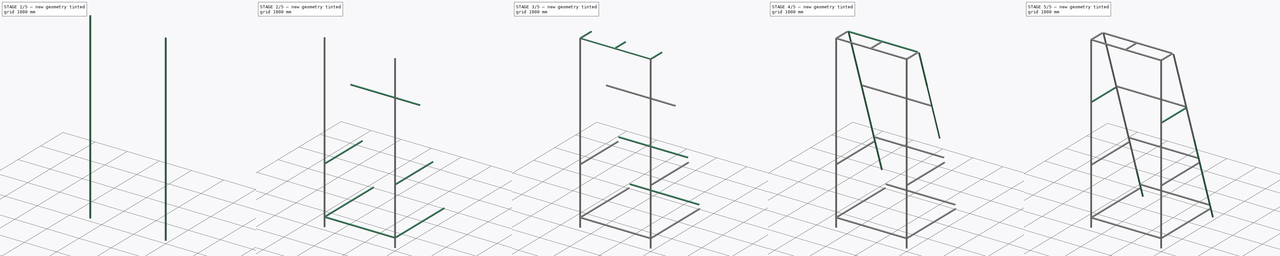
[diagram: build sequence overview — one tinted view per stage of 5, left to right]
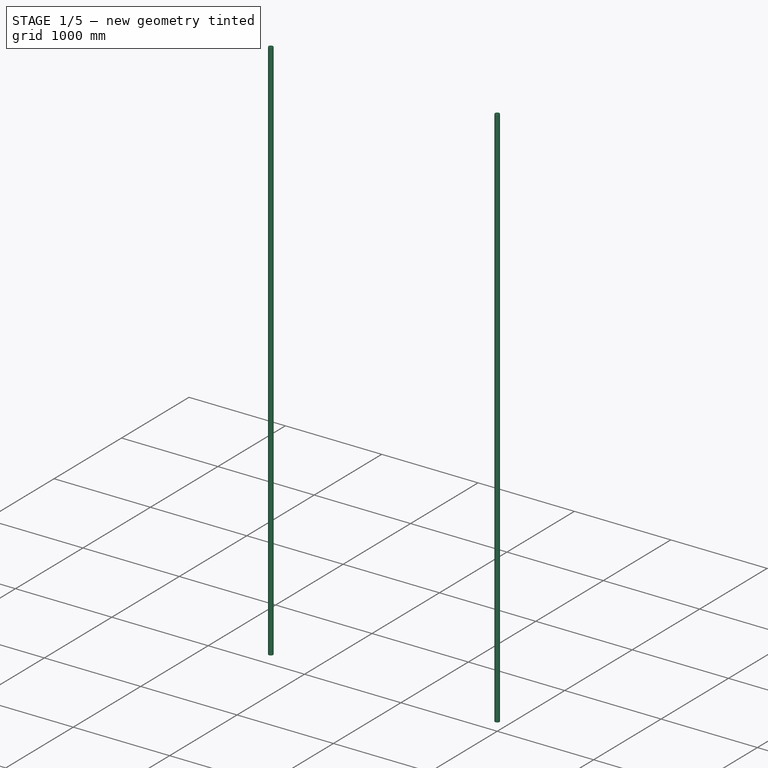
[diagram: stage 1 of 5 — iso view after this stage's code; geometry added in this stage tinted green]
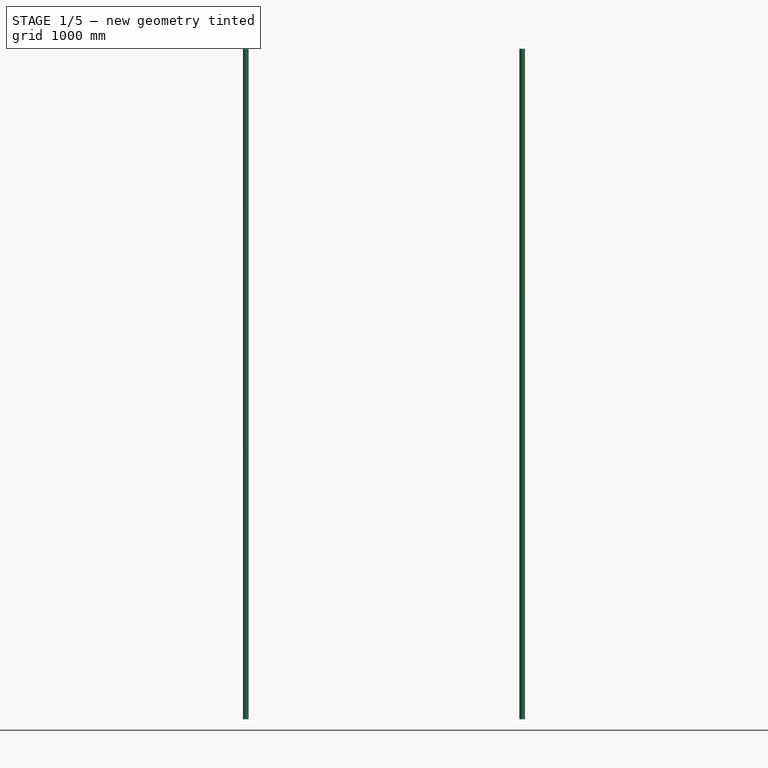
[diagram: stage 1 of 5 — front view after this stage's code; geometry added in this stage tinted green]
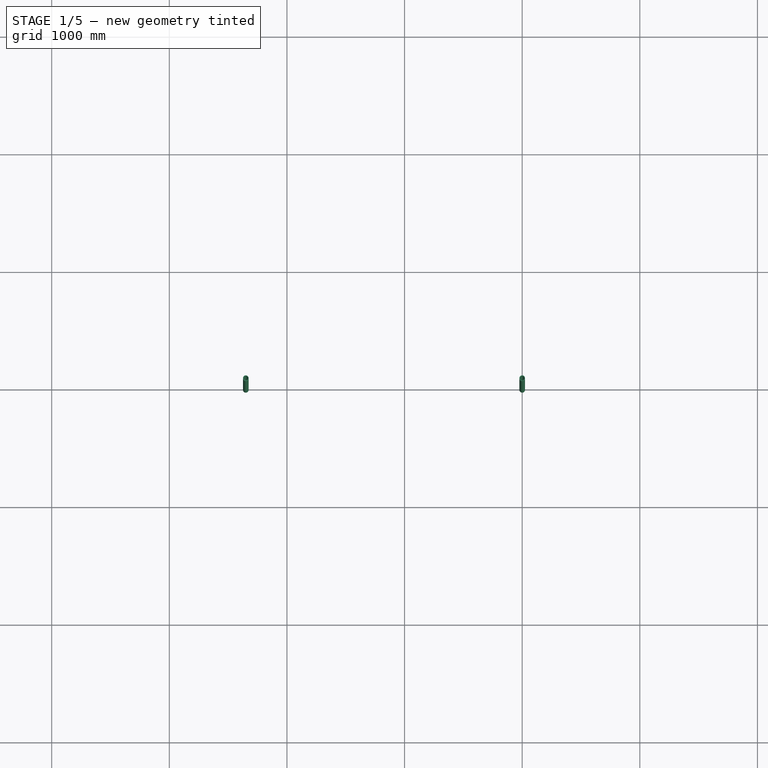
[diagram: stage 1 of 5 — top view after this stage's code; geometry added in this stage tinted green]
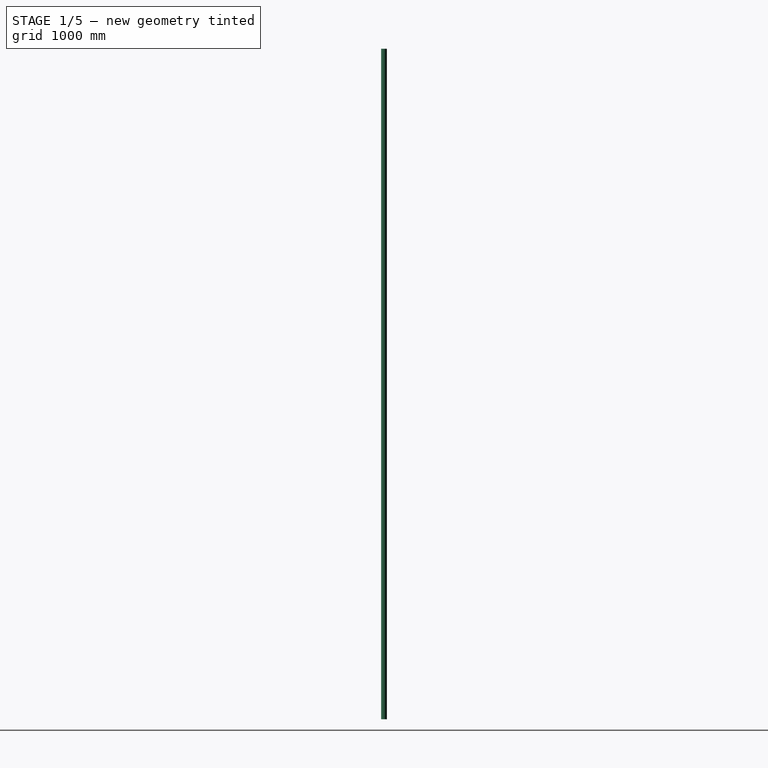
[diagram: stage 1 of 5 — right view after this stage's code; geometry added in this stage tinted green]
FCSTD DOCUMENT  (FreeCAD 0.21R33694 (Git))
Label: aristarchus_frame
License: All rights reserved
LicenseURL: http://en.wikipedia.org/wiki/All_rights_reserved
objects: Part::Part2DObjectPython×92, Part::Sweep×58, App::DocumentObjectGroup×30, Part::Cut×29, Sketcher::SketchObject×6, Spreadsheet::Sheet×3, Part::RuledSurface×3, App::MeasureDistance×2, App::Part×1, Part::Mirroring×1
note: 189 computed .brp shape members not serialized (recipe doc carries the construction recipe); baked Part::Feature solids carry a one-line shape summary decoded from their .brp

FEATURE [App::DocumentObjectGroup] FcSweep023  label="Pipe_Circle_r_=_24.0_Th_=_4.023"
  Group = -> [Sweep_Externe_023,Line025,Circle046,Sweep_Substract_023,Circle047,Pipe023]
FEATURE [Part::Part2DObjectPython] Line026  label="Line_Master_Line026"  # Draft 2D object (typed FeaturePython)
  Area = 0
  ChamferSize = 0
  Closed = false
  End = (-4.219e-13,4.219e-13,1900)
  FilletRadius = 0
  Length = 1900
  MakeFace = false
  Points = (2) [(0,0,0),(-4.21885e-13,4.21885e-13,1900)]
  Start = (0,0,0)
  Subdivisions = 0
FEATURE [Part::Part2DObjectPython] Circle048  label="Forme_Circle048"  # Draft 2D object (typed FeaturePython)
  Area = 0
  FirstAngle = 0
  LastAngle = 0
  MakeFace = false
  Radius = 24
FEATURE [Part::Part2DObjectPython] Circle049  label="Subtract_Circle049"  # Draft 2D object (typed FeaturePython)
  Area = 0
  FirstAngle = 0
  LastAngle = 0
  MakeFace = false
  Radius = 20
FEATURE [Part::Sweep] Sweep_Externe_024
  Frenet = true
  Sections = -> [Circle048]
  Solid = true
  Spine = -> Line026
  Transition = 1
FEATURE [Part::Sweep] Sweep_Substract_024
  Frenet = false
  Sections = -> [Circle049]
  Solid = true
  Spine = -> Line026
  Transition = 1
FEATURE [App::DocumentObjectGroup] FcSweep024  label="Pipe_Circle_r_=_24.0_Th_=_4.024"
  Group = -> [Sweep_Externe_024,Line026,Circle048,Sweep_Substract_024,Circle049,Pipe024]
FEATURE [Part::Part2DObjectPython] Line027  label="Line_Master_Line027"  # Draft 2D object (typed FeaturePython)
  Area = 0
  ChamferSize = 0
  Closed = false
  End = (-8.438e-13,8.438e-13,3800)
  FilletRadius = 0
  Length = 1900
  MakeFace = false
  Points = (2) [(-4.21885e-13,4.21885e-13,1900),(-8.43769e-13,8.43769e-13,3800)]
  Start = (-4.219e-13,4.219e-13,1900)
  Subdivisions = 0
FEATURE [Part::Part2DObjectPython] Circle050  label="Forme_Circle050"  # Draft 2D object (typed FeaturePython)
  Area = 0
  FirstAngle = 0
  LastAngle = 0
  MakeFace = false
  Placement = pos=(-4.219e-13,4.219e-13,1900) rot=(0,0,1;0rad)
  Radius = 24
FEATURE [Part::Part2DObjectPython] Circle051  label="Subtract_Circle051"  # Draft 2D object (typed FeaturePython)
  Area = 0
  FirstAngle = 0
  LastAngle = 0
  MakeFace = false
  Placement = pos=(-4.219e-13,4.219e-13,1900) rot=(0,0,1;0rad)
  Radius = 20
FEATURE [Part::Sweep] Sweep_Externe_025
  Frenet = true
  Sections = -> [Circle050]
  Solid = true
  Spine = -> Line027
  Transition = 1
FEATURE [Part::Sweep] Sweep_Substract_025
  Frenet = false
  Sections = -> [Circle051]
  Solid = true
  Spine = -> Line027
  Transition = 1
FEATURE [Part::Cut] Pipe025
  Base = -> Sweep_Externe_025
  Tool = -> Sweep_Substract_025
FEATURE [App::DocumentObjectGroup] FcSweep025  label="Pipe_Circle_r_=_24.0_Th_=_4.025"
  Group = -> [Sweep_Externe_025,Line027,Circle050,Sweep_Substract_025,Circle051,Pipe025]
FEATURE [Part::Part2DObjectPython] Line028  label="Line_Master_Line028"  # Draft 2D object (typed FeaturePython)
  Area = 0
  ChamferSize = 0
  Closed = false
  End = (-1.2657e-12,1.2657e-12,5700)
  FilletRadius = 0
  Length = 1900
  MakeFace = false
  Points = (2) [(-8.43769e-13,8.43769e-13,3800),(-1.26565e-12,1.26565e-12,5700)]
  Start = (-8.438e-13,8.438e-13,3800)
  Subdivisions = 0
FEATURE [Part::Part2DObjectPython] Circle052  label="Forme_Circle052"  # Draft 2D object (typed FeaturePython)
  Area = 0
  FirstAngle = 0
  LastAngle = 0
  MakeFace = false
  Placement = pos=(-8.438e-13,8.438e-13,3800) rot=(0,0,1;0rad)
  Radius = 24
FEATURE [Part::Part2DObjectPython] Circle053  label="Subtract_Circle053"  # Draft 2D object (typed FeaturePython)
  Area = 0
  FirstAngle = 0
  LastAngle = 0
  MakeFace = false
  Placement = pos=(-8.438e-13,8.438e-13,3800) rot=(0,0,1;0rad)
  Radius = 20
FEATURE [Part::Sweep] Sweep_Externe_026
  Frenet = true
  Sections = -> [Circle052]
  Solid = true
  Spine = -> Line028
  Transition = 1
FEATURE [Part::Sweep] Sweep_Substract_026
  Frenet = false
  Sections = -> [Circle053]
  Solid = true
  Spine = -> Line028
  Transition = 1
FEATURE [Part::Cut] Pipe026
  Base = -> Sweep_Externe_026
  Tool = -> Sweep_Substract_026
FEATURE [App::DocumentObjectGroup] FcSweep026  label="Pipe_Circle_r_=_24.0_Th_=_4.026"
  Group = -> [Sweep_Externe_026,Line028,Circle052,Sweep_Substract_026,Circle053,Pipe026]
FEATURE [Part::Part2DObjectPython] Line029  label="Line_Master_Line029"  # Draft 2D object (typed FeaturePython)
  Area = 0
  ChamferSize = 0
  Closed = false
  End = (-2350,9.437e-13,1900)
  FilletRadius = 0
  Length = 1900
  MakeFace = false
  Points = (2) [(-2350,5.21805e-13,-5.21805e-13),(-2350,9.4369e-13,1900)]
  Start = (-2350,5.218e-13,-5.218e-13)
  Subdivisions = 0
FEATURE [Part::Part2DObjectPython] Circle054  label="Forme_Circle054"  # Draft 2D object (typed FeaturePython)
  Area = 0
  FirstAngle = 0
  LastAngle = 0
  MakeFace = false
  Placement = pos=(-2350,5.218e-13,-5.218e-13) rot=(0,0,1;0rad)
  Radius = 24
FEATURE [Part::Part2DObjectPython] Circle055  label="Subtract_Circle055"  # Draft 2D object (typed FeaturePython)
  Area = 0
  FirstAngle = 0
  LastAngle = 0
  MakeFace = false
  Placement = pos=(-2350,5.218e-13,-5.218e-13) rot=(0,0,1;0rad)
  Radius = 20
FEATURE [Part::Sweep] Sweep_Externe_027
  Frenet = true
  Sections = -> [Circle054]
  Solid = true
  Spine = -> Line029
  Transition = 1
FEATURE [Part::Sweep] Sweep_Substract_027
  Frenet = false
  Sections = -> [Circle055]
  Solid = true
  Spine = -> Line029
  Transition = 1
FEATURE [Part::Cut] Pipe027
  Base = -> Sweep_Externe_027
  Tool = -> Sweep_Substract_027
FEATURE [App::DocumentObjectGroup] FcSweep027  label="Pipe_Circle_r_=_24.0_Th_=_4.027"
  Group = -> [Sweep_Externe_027,Line029,Circle054,Sweep_Substract_027,Circle055,Pipe027]
FEATURE [Part::Part2DObjectPython] Line030  label="Line_Master_Line030"  # Draft 2D object (typed FeaturePython)
  Area = 0
  ChamferSize = 0
  Closed = false
  End = (-2350,1.3656e-12,3800)
  FilletRadius = 0
  Length = 1900
  MakeFace = false
  Points = (2) [(-2350,9.4369e-13,1900),(-2350,1.36557e-12,3800)]
  Start = (-2350,9.437e-13,1900)
  Subdivisions = 0
FEATURE [Part::Part2DObjectPython] Circle056  label="Forme_Circle056"  # Draft 2D object (typed FeaturePython)
  Area = 0
  FirstAngle = 0
  LastAngle = 0
  MakeFace = false
  Placement = pos=(-2350,9.44e-13,1900) rot=(0,0,1;0rad)
  Radius = 24
FEATURE [Part::Part2DObjectPython] Circle057  label="Subtract_Circle057"  # Draft 2D object (typed FeaturePython)
  Area = 0
  FirstAngle = 0
  LastAngle = 0
  MakeFace = false
  Placement = pos=(-2350,9.44e-13,1900) rot=(0,0,1;0rad)
  Radius = 20
FEATURE [Part::Sweep] Sweep_Externe_028
  Frenet = true
  Sections = -> [Circle056]
  Solid = true
  Spine = -> Line030
  Transition = 1
FEATURE [Part::Sweep] Sweep_Substract_028
  Frenet = false
  Sections = -> [Circle057]
  Solid = true
  Spine = -> Line030
  Transition = 1
FEATURE [Part::Cut] Pipe028
  Base = -> Sweep_Externe_028
  Tool = -> Sweep_Substract_028
FEATURE [App::DocumentObjectGroup] FcSweep028  label="Pipe_Circle_r_=_24.0_Th_=_4.028"
  Group = -> [Sweep_Externe_028,Line030,Circle056,Sweep_Substract_028,Circle057,Pipe028]
FEATURE [Part::Part2DObjectPython] Line031  label="Line_Master_Line031"  # Draft 2D object (typed FeaturePython)
  Area = 0
  ChamferSize = 0
  Closed = false
  End = (-2350,1.7875e-12,5700)
  FilletRadius = 0
  Length = 1900
  MakeFace = false
  Points = (2) [(-2350,1.36557e-12,3800),(-2350,1.78746e-12,5700)]
  Start = (-2350,1.3656e-12,3800)
  Subdivisions = 0
FEATURE [Part::Part2DObjectPython] Circle058  label="Forme_Circle058"  # Draft 2D object (typed FeaturePython)
  Area = 0
  FirstAngle = 0
  LastAngle = 0
  MakeFace = false
  Placement = pos=(-2350,1.366e-12,3800) rot=(0,0,1;0rad)
  Radius = 24
FEATURE [Part::Part2DObjectPython] Circle059  label="Subtract_Circle059"  # Draft 2D object (typed FeaturePython)
  Area = 0
  FirstAngle = 0
  LastAngle = 0
  MakeFace = false
  Placement = pos=(-2350,1.366e-12,3800) rot=(0,0,1;0rad)
  Radius = 20
FEATURE [Part::Sweep] Sweep_Externe_029
  Frenet = true
  Sections = -> [Circle058]
  Solid = true
  Spine = -> Line031
  Transition = 1
FEATURE [Part::Sweep] Sweep_Substract_029
  Frenet = false
  Sections = -> [Circle059]
  Solid = true
  Spine = -> Line031
  Transition = 1
FEATURE [Part::Cut] Pipe029
  Base = -> Sweep_Externe_029
  Tool = -> Sweep_Substract_029
FEATURE [App::DocumentObjectGroup] FcSweep029  label="Pipe_Circle_r_=_24.0_Th_=_4.029"
  Group = -> [Sweep_Externe_029,Line031,Circle058,Sweep_Substract_029,Circle059,Pipe029]
FEATURE [App::MeasureDistance] Distance  label="Distance: 961.000 mm"
  Distance = 961
  P1 = (13.6336,2155.07,905.439)
  P2 = (13.6336,2458.97,-6.24601)
FEATURE [App::MeasureDistance] Distance001  label="Distance: 1200.000 mm"
  Distance = 1200
  P1 = (13.6336,573.3,5650.75)
  P2 = (13.6336,952.774,4512.33)
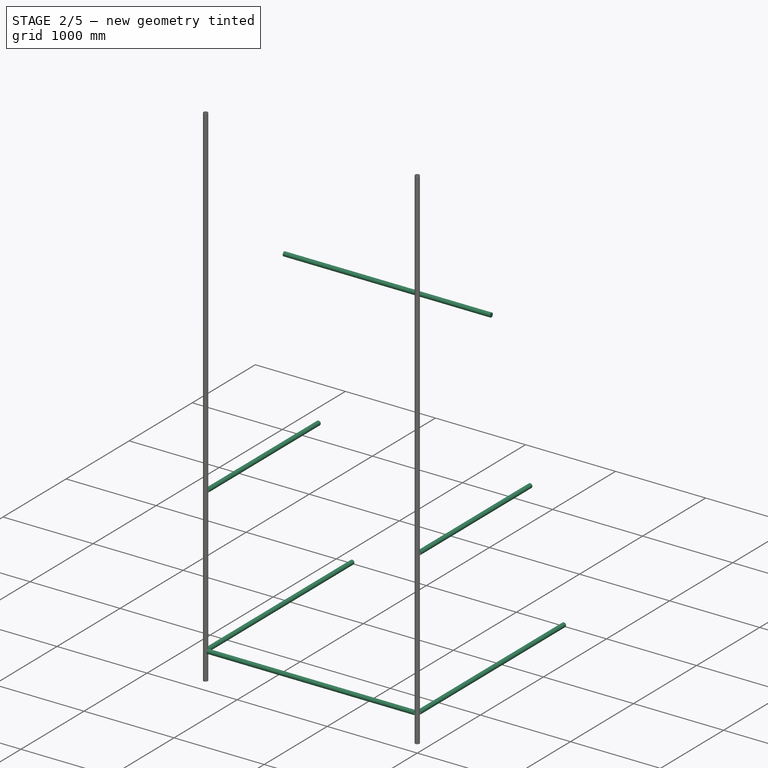
[diagram: stage 2 of 5 — iso view after this stage's code; geometry added in this stage tinted green]
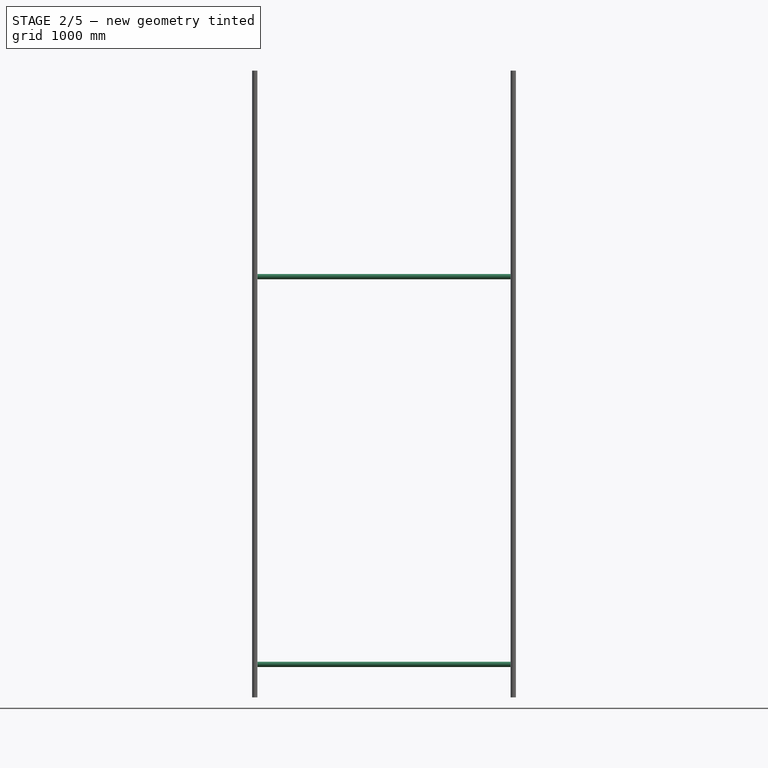
[diagram: stage 2 of 5 — front view after this stage's code; geometry added in this stage tinted green]
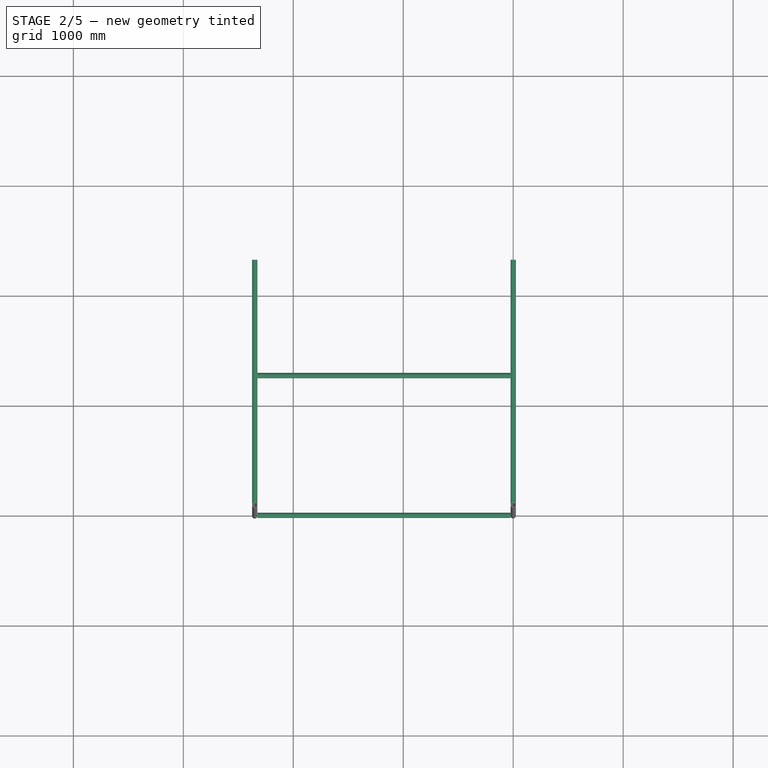
[diagram: stage 2 of 5 — top view after this stage's code; geometry added in this stage tinted green]
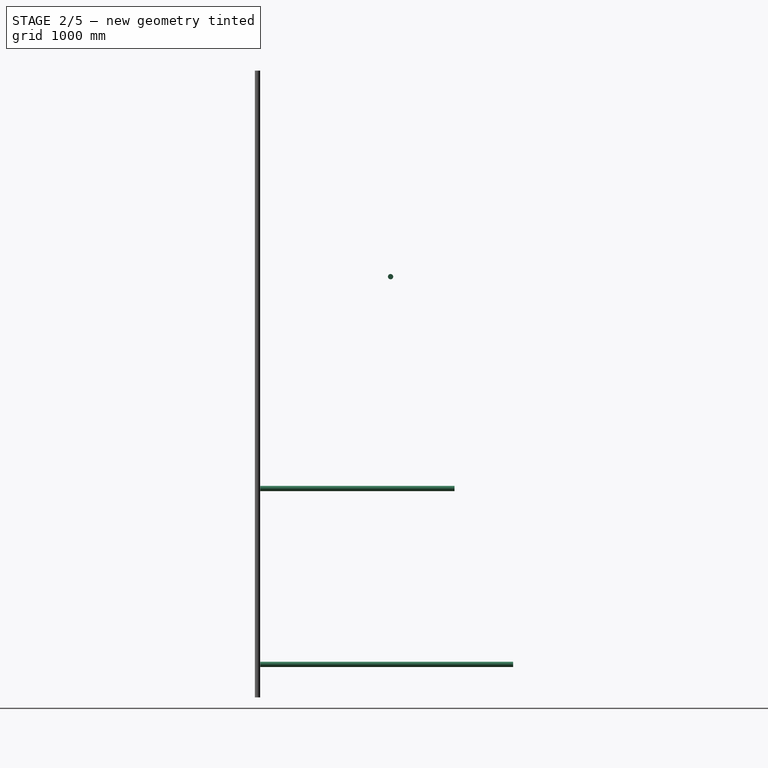
[diagram: stage 2 of 5 — right view after this stage's code; geometry added in this stage tinted green]
FEATURE [App::DocumentObjectGroup] FcSweep017  label="Pipe_Circle_r_=_24.0_Th_=_4.017"
  Group = -> [Sweep_Externe_017,Line019,Circle034,Sweep_Substract_017,Circle035,Pipe017]
FEATURE [Part::Part2DObjectPython] Line020  label="Line_Master_Line020"  # Draft 2D object (typed FeaturePython)
  Area = 0
  ChamferSize = 0
  Closed = false
  End = (-25,1210.22,3826.11)
  FilletRadius = 0
  Length = 2300
  MakeFace = false
  Points = (2) [(-2325,1210.22,3826.11),(-25,1210.22,3826.11)]
  Start = (-2325,1210.22,3826.11)
  Subdivisions = 0
FEATURE [Part::Part2DObjectPython] Circle036  label="Forme_Circle036"  # Draft 2D object (typed FeaturePython)
  Area = 0
  FirstAngle = 0
  LastAngle = 0
  MakeFace = false
  Placement = pos=(-2325,1210.22,3826.11) rot=(0,1,0;1.5708rad)
  Radius = 24
FEATURE [Part::Part2DObjectPython] Circle037  label="Subtract_Circle037"  # Draft 2D object (typed FeaturePython)
  Area = 0
  FirstAngle = 0
  LastAngle = 0
  MakeFace = false
  Placement = pos=(-2325,1210.22,3826.11) rot=(0,1,0;1.5708rad)
  Radius = 20
FEATURE [Part::Sweep] Sweep_Externe_018
  Frenet = true
  Sections = -> [Circle036]
  Solid = true
  Spine = -> Line020
  Transition = 1
FEATURE [Part::Sweep] Sweep_Substract_018
  Frenet = false
  Sections = -> [Circle037]
  Solid = true
  Spine = -> Line020
  Transition = 1
FEATURE [App::DocumentObjectGroup] FcSweep018  label="Pipe_Circle_r_=_24.0_Th_=_4.018"
  Group = -> [Sweep_Externe_018,Line020,Circle036,Sweep_Substract_018,Circle037,Pipe018]
FEATURE [Part::Part2DObjectPython] Line021  label="Line_Master_Line021"  # Draft 2D object (typed FeaturePython)
  Area = 0
  ChamferSize = 0
  Closed = false
  End = (-25,-6.66e-14,300)
  FilletRadius = 0
  Length = 2300
  MakeFace = false
  Points = (2) [(-2325,-6.66134e-14,300),(-25,-6.66134e-14,300)]
  Start = (-2325,-6.66e-14,300)
  Subdivisions = 0
FEATURE [Part::Part2DObjectPython] Circle038  label="Forme_Circle038"  # Draft 2D object (typed FeaturePython)
  Area = 0
  FirstAngle = 0
  LastAngle = 0
  MakeFace = false
  Placement = pos=(-2325,-6.7e-14,300) rot=(0,1,0;1.5708rad)
  Radius = 24
FEATURE [Part::Part2DObjectPython] Circle039  label="Subtract_Circle039"  # Draft 2D object (typed FeaturePython)
  Area = 0
  FirstAngle = 0
  LastAngle = 0
  MakeFace = false
  Placement = pos=(-2325,-6.7e-14,300) rot=(0,1,0;1.5708rad)
  Radius = 20
FEATURE [Part::Sweep] Sweep_Externe_019
  Frenet = true
  Sections = -> [Circle038]
  Solid = true
  Spine = -> Line021
  Transition = 1
FEATURE [Part::Sweep] Sweep_Substract_019
  Frenet = false
  Sections = -> [Circle039]
  Solid = true
  Spine = -> Line021
  Transition = 1
FEATURE [Part::Cut] Pipe019
  Base = -> Sweep_Externe_019
  Tool = -> Sweep_Substract_019
FEATURE [App::DocumentObjectGroup] FcSweep019  label="Pipe_Circle_r_=_24.0_Th_=_4.019"
  Group = -> [Sweep_Externe_019,Line021,Circle038,Sweep_Substract_019,Circle039,Pipe019]
FEATURE [Part::Part2DObjectPython] Line022  label="Line_Master_Line022"  # Draft 2D object (typed FeaturePython)
  Area = 0
  ChamferSize = 0
  Closed = false
  End = (4.496e-13,2325,300)
  FilletRadius = 0
  Length = 2300
  MakeFace = false
  Points = (2) [(-6.10623e-14,25,300),(4.4964e-13,2325,300)]
  Start = (-6.11e-14,25,300)
  Subdivisions = 0
FEATURE [Part::Part2DObjectPython] Circle040  label="Forme_Circle040"  # Draft 2D object (typed FeaturePython)
  Area = 0
  FirstAngle = 0
  LastAngle = 0
  MakeFace = false
  Placement = pos=(-6.1e-14,25,300) rot=(-1,0,0;1.5708rad)
  Radius = 24
FEATURE [Part::Part2DObjectPython] Circle041  label="Subtract_Circle041"  # Draft 2D object (typed FeaturePython)
  Area = 0
  FirstAngle = 0
  LastAngle = 0
  MakeFace = false
  Placement = pos=(-6.1e-14,25,300) rot=(-1,0,0;1.5708rad)
  Radius = 20
FEATURE [Part::Sweep] Sweep_Externe_020
  Frenet = true
  Sections = -> [Circle040]
  Solid = true
  Spine = -> Line022
  Transition = 1
FEATURE [Part::Sweep] Sweep_Substract_020
  Frenet = false
  Sections = -> [Circle041]
  Solid = true
  Spine = -> Line022
  Transition = 1
FEATURE [Part::Cut] Pipe020
  Base = -> Sweep_Externe_020
  Tool = -> Sweep_Substract_020
FEATURE [App::DocumentObjectGroup] FcSweep020  label="Pipe_Circle_r_=_24.0_Th_=_4.020"
  Group = -> [Sweep_Externe_020,Line022,Circle040,Sweep_Substract_020,Circle041,Pipe020]
FEATURE [Part::Part2DObjectPython] Line023  label="Line_Master_Line023"  # Draft 2D object (typed FeaturePython)
  Area = 0
  ChamferSize = 0
  Closed = false
  End = (-2350,2325,300)
  FilletRadius = 0
  Length = 2300
  MakeFace = false
  Points = (2) [(-2350,25,300),(-2350,2325,300)]
  Start = (-2350,25,300)
  Subdivisions = 0
FEATURE [Part::Part2DObjectPython] Circle042  label="Forme_Circle042"  # Draft 2D object (typed FeaturePython)
  Area = 0
  FirstAngle = 0
  LastAngle = 0
  MakeFace = false
  Placement = pos=(-2350,25,300) rot=(-1,0,0;1.5708rad)
  Radius = 24
FEATURE [Part::Part2DObjectPython] Circle043  label="Subtract_Circle043"  # Draft 2D object (typed FeaturePython)
  Area = 0
  FirstAngle = 0
  LastAngle = 0
  MakeFace = false
  Placement = pos=(-2350,25,300) rot=(-1,0,0;1.5708rad)
  Radius = 20
FEATURE [Part::Sweep] Sweep_Externe_021
  Frenet = true
  Sections = -> [Circle042]
  Solid = true
  Spine = -> Line023
  Transition = 1
FEATURE [Part::Sweep] Sweep_Substract_021
  Frenet = false
  Sections = -> [Circle043]
  Solid = true
  Spine = -> Line023
  Transition = 1
FEATURE [Part::Cut] Pipe021
  Base = -> Sweep_Externe_021
  Tool = -> Sweep_Substract_021
FEATURE [App::DocumentObjectGroup] FcSweep021  label="Pipe_Circle_r_=_24.0_Th_=_4.021"
  Group = -> [Sweep_Externe_021,Line023,Circle042,Sweep_Substract_021,Circle043,Pipe021]
FEATURE [Part::Part2DObjectPython] Line024  label="Line_Master_Line024"  # Draft 2D object (typed FeaturePython)
  Area = 0
  ChamferSize = 0
  Closed = false
  End = (-2350,1791.67,1900)
  FilletRadius = 0
  Length = 1766.67
  MakeFace = false
  Points = (2) [(-2350,25,1900),(-2350,1791.67,1900)]
  Start = (-2350,25,1900)
  Subdivisions = 0
FEATURE [Part::Part2DObjectPython] Circle044  label="Forme_Circle044"  # Draft 2D object (typed FeaturePython)
  Area = 0
  FirstAngle = 0
  LastAngle = 0
  MakeFace = false
  Placement = pos=(-2350,25,1900) rot=(-1,0,0;1.5708rad)
  Radius = 24
FEATURE [Part::Part2DObjectPython] Circle045  label="Subtract_Circle045"  # Draft 2D object (typed FeaturePython)
  Area = 0
  FirstAngle = 0
  LastAngle = 0
  MakeFace = false
  Placement = pos=(-2350,25,1900) rot=(-1,0,0;1.5708rad)
  Radius = 20
FEATURE [Part::Sweep] Sweep_Externe_022
  Frenet = true
  Sections = -> [Circle044]
  Solid = true
  Spine = -> Line024
  Transition = 1
FEATURE [Part::Sweep] Sweep_Substract_022
  Frenet = false
  Sections = -> [Circle045]
  Solid = true
  Spine = -> Line024
  Transition = 1
FEATURE [Part::Cut] Pipe022
  Base = -> Sweep_Externe_022
  Tool = -> Sweep_Substract_022
FEATURE [App::DocumentObjectGroup] FcSweep022  label="Pipe_Circle_r_=_24.0_Th_=_4.022"
  Group = -> [Sweep_Externe_022,Line024,Circle044,Sweep_Substract_022,Circle045,Pipe022]
FEATURE [Part::Part2DObjectPython] Line025  label="Line_Master_Line025"  # Draft 2D object (typed FeaturePython)
  Area = 0
  ChamferSize = 0
  Closed = false
  End = (-2.41e-14,1791.67,1900)
  FilletRadius = 0
  Length = 1766.67
  MakeFace = false
  Points = (2) [(-4.16334e-13,25,1900),(-2.40548e-14,1791.67,1900)]
  Start = (-4.163e-13,25,1900)
  Subdivisions = 0
FEATURE [Part::Part2DObjectPython] Circle046  label="Forme_Circle046"  # Draft 2D object (typed FeaturePython)
  Area = 0
  FirstAngle = 0
  LastAngle = 0
  MakeFace = false
  Placement = pos=(-4.16e-13,25,1900) rot=(-1,0,0;1.5708rad)
  Radius = 24
FEATURE [Part::Part2DObjectPython] Circle047  label="Subtract_Circle047"  # Draft 2D object (typed FeaturePython)
  Area = 0
  FirstAngle = 0
  LastAngle = 0
  MakeFace = false
  Placement = pos=(-4.16e-13,25,1900) rot=(-1,0,0;1.5708rad)
  Radius = 20
FEATURE [Part::Sweep] Sweep_Externe_023
  Frenet = true
  Sections = -> [Circle046]
  Solid = true
  Spine = -> Line025
  Transition = 1
FEATURE [Part::Sweep] Sweep_Substract_023
  Frenet = false
  Sections = -> [Circle047]
  Solid = true
  Spine = -> Line025
  Transition = 1
FEATURE [Part::Cut] Pipe023
  Base = -> Sweep_Externe_023
  Tool = -> Sweep_Substract_023
FEATURE [Part::Cut] Pipe024
  Base = -> Sweep_Externe_024
  Tool = -> Sweep_Substract_024
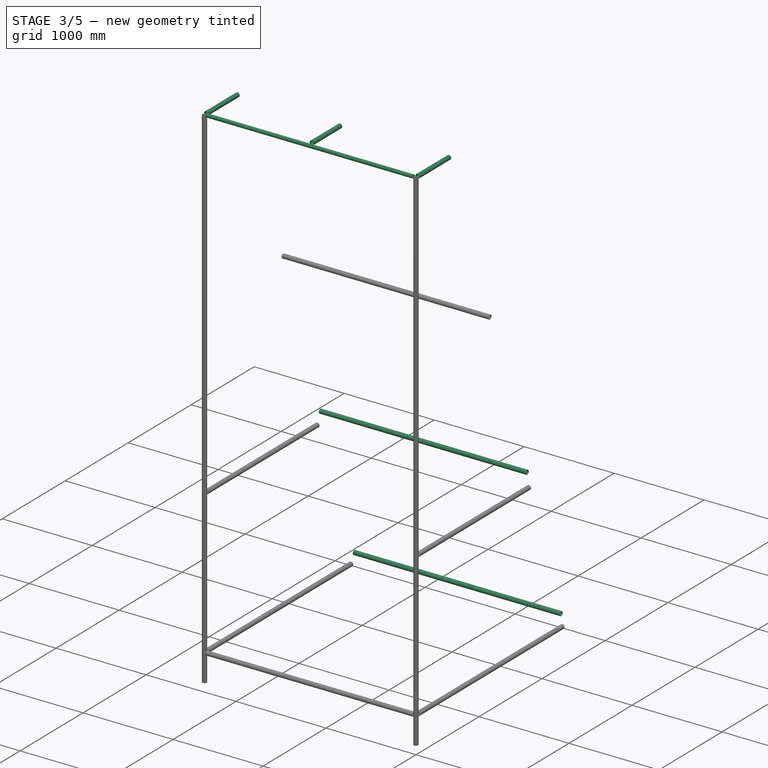
[diagram: stage 3 of 5 — iso view after this stage's code; geometry added in this stage tinted green]
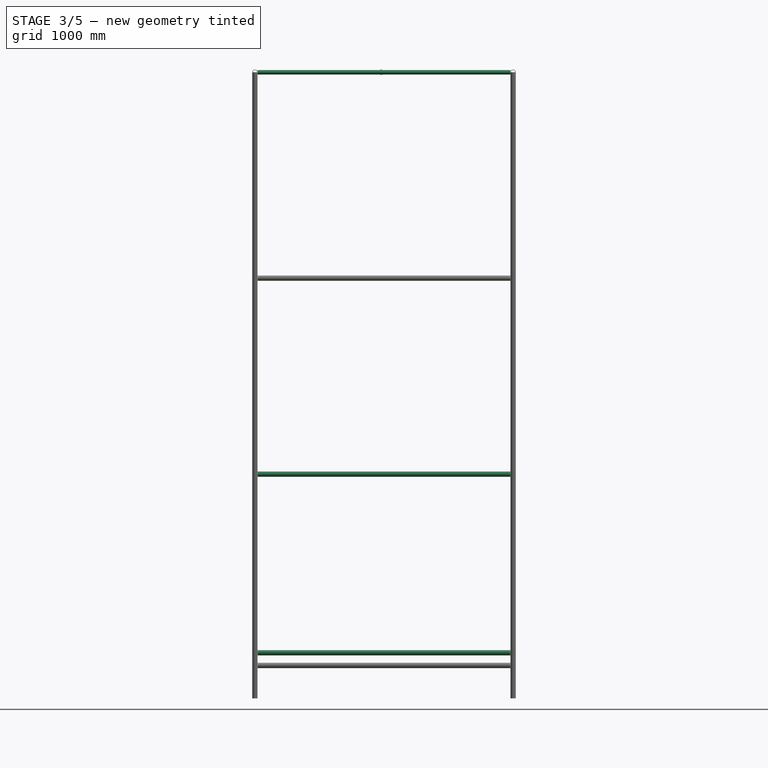
[diagram: stage 3 of 5 — front view after this stage's code; geometry added in this stage tinted green]
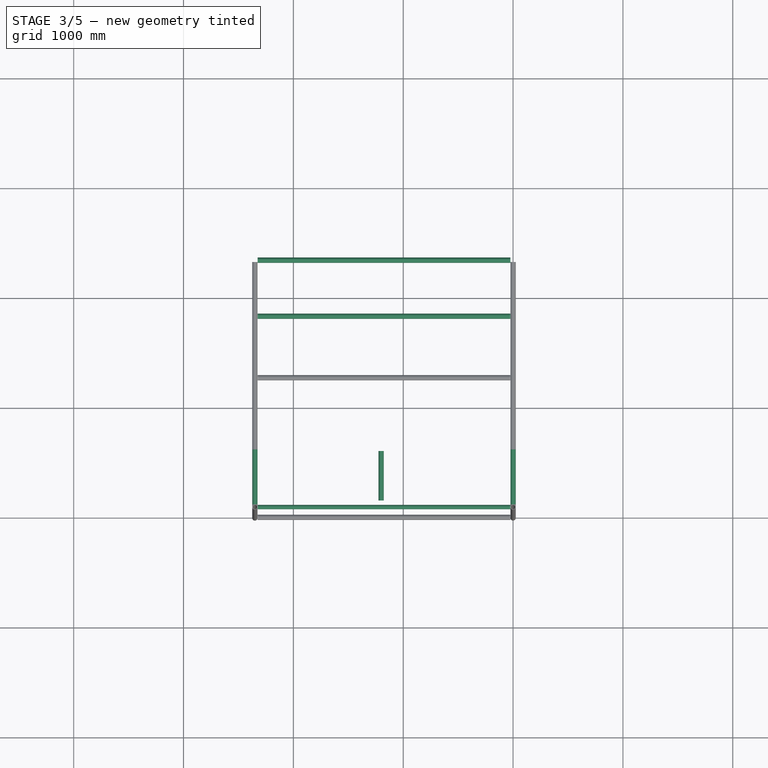
[diagram: stage 3 of 5 — top view after this stage's code; geometry added in this stage tinted green]
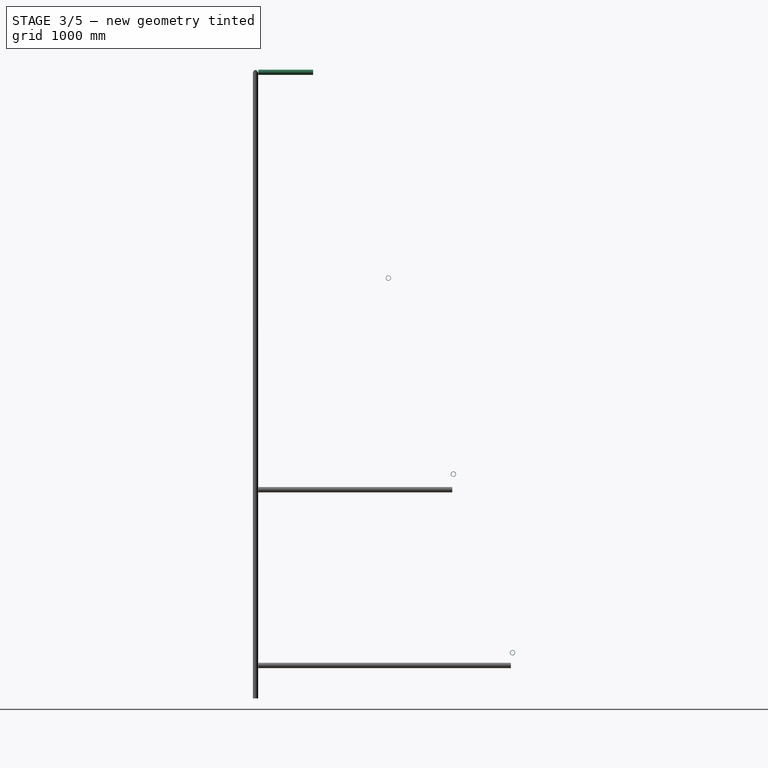
[diagram: stage 3 of 5 — right view after this stage's code; geometry added in this stage tinted green]
FEATURE [Part::Sweep] Sweep_Substract_012
  Frenet = false
  Sections = -> [Circle025]
  Solid = true
  Spine = -> Line014
  Transition = 1
FEATURE [App::DocumentObjectGroup] FcSweep012  label="Pipe_Circle_r_=_24.0_Th_=_4.012"
  Group = -> [Sweep_Externe_012,Line014,Circle024,Sweep_Substract_012,Circle025,Pipe012]
FEATURE [Part::Part2DObjectPython] Line015  label="Line_Master_Line015"  # Draft 2D object (typed FeaturePython)
  Area = 0
  ChamferSize = 0
  Closed = false
  End = (-1200.71,509.674,5700)
  FilletRadius = 0
  Length = 450
  MakeFace = false
  Points = (2) [(-1200.71,59.6745,5700),(-1200.71,509.674,5700)]
  Start = (-1200.71,59.6745,5700)
  Subdivisions = 0
FEATURE [Part::Part2DObjectPython] Circle026  label="Forme_Circle026"  # Draft 2D object (typed FeaturePython)
  Area = 0
  FirstAngle = 0
  LastAngle = 0
  MakeFace = false
  Placement = pos=(-1200.71,59.6745,5700) rot=(-1,0,0;1.5708rad)
  Radius = 24
FEATURE [Part::Part2DObjectPython] Circle027  label="Subtract_Circle027"  # Draft 2D object (typed FeaturePython)
  Area = 0
  FirstAngle = 0
  LastAngle = 0
  MakeFace = false
  Placement = pos=(-1200.71,59.6745,5700) rot=(-1,0,0;1.5708rad)
  Radius = 20
FEATURE [Part::Sweep] Sweep_Externe_013
  Frenet = true
  Sections = -> [Circle026]
  Solid = true
  Spine = -> Line015
  Transition = 1
FEATURE [Part::Sweep] Sweep_Substract_013
  Frenet = false
  Sections = -> [Circle027]
  Solid = true
  Spine = -> Line015
  Transition = 1
FEATURE [Part::Cut] Pipe013
  Base = -> Sweep_Externe_013
  Tool = -> Sweep_Substract_013
FEATURE [App::DocumentObjectGroup] FcSweep013  label="Pipe_Circle_r_=_24.0_Th_=_4.013"
  Group = -> [Sweep_Externe_013,Line015,Circle026,Sweep_Substract_013,Circle027,Pipe013]
FEATURE [Part::Part2DObjectPython] Line016  label="Line_Master_Line016"  # Draft 2D object (typed FeaturePython)
  Area = 0
  ChamferSize = 0
  Closed = false
  End = (-1.1491e-12,525,5700)
  FilletRadius = 0
  Length = 500
  MakeFace = false
  Points = (2) [(-1.2601e-12,25,5700),(-1.14908e-12,525,5700)]
  Start = (-1.2601e-12,25,5700)
  Subdivisions = 0
FEATURE [Part::Part2DObjectPython] Circle028  label="Forme_Circle028"  # Draft 2D object (typed FeaturePython)
  Area = 0
  FirstAngle = 0
  LastAngle = 0
  MakeFace = false
  Placement = pos=(-1.26e-12,25,5700) rot=(-1,0,0;1.5708rad)
  Radius = 24
FEATURE [Part::Part2DObjectPython] Circle029  label="Subtract_Circle029"  # Draft 2D object (typed FeaturePython)
  Area = 0
  FirstAngle = 0
  LastAngle = 0
  MakeFace = false
  Placement = pos=(-1.26e-12,25,5700) rot=(-1,0,0;1.5708rad)
  Radius = 20
FEATURE [Part::Sweep] Sweep_Externe_014
  Frenet = true
  Sections = -> [Circle028]
  Solid = true
  Spine = -> Line016
  Transition = 1
FEATURE [Part::Sweep] Sweep_Substract_014
  Frenet = false
  Sections = -> [Circle029]
  Solid = true
  Spine = -> Line016
  Transition = 1
FEATURE [Part::Cut] Pipe014
  Base = -> Sweep_Externe_014
  Tool = -> Sweep_Substract_014
FEATURE [App::DocumentObjectGroup] FcSweep014  label="Pipe_Circle_r_=_24.0_Th_=_4.014"
  Group = -> [Sweep_Externe_014,Line016,Circle028,Sweep_Substract_014,Circle029,Pipe014]
FEATURE [Part::Part2DObjectPython] Line017  label="Line_Master_Line017"  # Draft 2D object (typed FeaturePython)
  Area = 0
  ChamferSize = 0
  Closed = false
  End = (-2350,525,5700)
  FilletRadius = 0
  Length = 500
  MakeFace = false
  Points = (2) [(-2350,25,5700),(-2350,525,5700)]
  Start = (-2350,25,5700)
  Subdivisions = 0
FEATURE [Part::Part2DObjectPython] Circle030  label="Forme_Circle030"  # Draft 2D object (typed FeaturePython)
  Area = 0
  FirstAngle = 0
  LastAngle = 0
  MakeFace = false
  Placement = pos=(-2350,25,5700) rot=(-1,0,0;1.5708rad)
  Radius = 24
FEATURE [Part::Part2DObjectPython] Circle031  label="Subtract_Circle031"  # Draft 2D object (typed FeaturePython)
  Area = 0
  FirstAngle = 0
  LastAngle = 0
  MakeFace = false
  Placement = pos=(-2350,25,5700) rot=(-1,0,0;1.5708rad)
  Radius = 20
FEATURE [Part::Sweep] Sweep_Externe_015
  Frenet = true
  Sections = -> [Circle030]
  Solid = true
  Spine = -> Line017
  Transition = 1
FEATURE [Part::Sweep] Sweep_Substract_015
  Frenet = false
  Sections = -> [Circle031]
  Solid = true
  Spine = -> Line017
  Transition = 1
FEATURE [Part::Cut] Pipe015
  Base = -> Sweep_Externe_015
  Tool = -> Sweep_Substract_015
FEATURE [App::DocumentObjectGroup] FcSweep015  label="Pipe_Circle_r_=_24.0_Th_=_4.015"
  Group = -> [Sweep_Externe_015,Line017,Circle030,Sweep_Substract_015,Circle031,Pipe015]
FEATURE [Part::Part2DObjectPython] Line018  label="Line_Master_Line018"  # Draft 2D object (typed FeaturePython)
  Area = 0
  ChamferSize = 0
  Closed = false
  End = (-25,2339.95,415.82)
  FilletRadius = 0
  Length = 2300
  MakeFace = false
  Points = (2) [(-2325,2339.95,415.82),(-25,2339.95,415.82)]
  Start = (-2325,2339.95,415.82)
  Subdivisions = 0
FEATURE [Part::Part2DObjectPython] Circle032  label="Forme_Circle032"  # Draft 2D object (typed FeaturePython)
  Area = 0
  FirstAngle = 0
  LastAngle = 0
  MakeFace = false
  Placement = pos=(-2325,2339.95,415.82) rot=(0,1,0;1.5708rad)
  Radius = 24
FEATURE [Part::Part2DObjectPython] Circle033  label="Subtract_Circle033"  # Draft 2D object (typed FeaturePython)
  Area = 0
  FirstAngle = 0
  LastAngle = 0
  MakeFace = false
  Placement = pos=(-2325,2339.95,415.82) rot=(0,1,0;1.5708rad)
  Radius = 20
FEATURE [Part::Sweep] Sweep_Externe_016
  Frenet = true
  Sections = -> [Circle032]
  Solid = true
  Spine = -> Line018
  Transition = 1
FEATURE [Part::Sweep] Sweep_Substract_016
  Frenet = false
  Sections = -> [Circle033]
  Solid = true
  Spine = -> Line018
  Transition = 1
FEATURE [Part::Cut] Pipe016
  Base = -> Sweep_Externe_016
  Tool = -> Sweep_Substract_016
FEATURE [App::DocumentObjectGroup] FcSweep016  label="Pipe_Circle_r_=_24.0_Th_=_4.016"
  Group = -> [Sweep_Externe_016,Line018,Circle032,Sweep_Substract_016,Circle033,Pipe016]
FEATURE [Part::Part2DObjectPython] Line019  label="Line_Master_Line019"  # Draft 2D object (typed FeaturePython)
  Area = 0
  ChamferSize = 0
  Closed = false
  End = (-25,1801.51,2041.19)
  FilletRadius = 0
  Length = 2300
  MakeFace = false
  Points = (2) [(-2325,1801.51,2041.19),(-25,1801.51,2041.19)]
  Start = (-2325,1801.51,2041.19)
  Subdivisions = 0
FEATURE [Part::Part2DObjectPython] Circle034  label="Forme_Circle034"  # Draft 2D object (typed FeaturePython)
  Area = 0
  FirstAngle = 0
  LastAngle = 0
  MakeFace = false
  Placement = pos=(-2325,1801.51,2041.19) rot=(0,1,0;1.5708rad)
  Radius = 24
FEATURE [Part::Part2DObjectPython] Circle035  label="Subtract_Circle035"  # Draft 2D object (typed FeaturePython)
  Area = 0
  FirstAngle = 0
  LastAngle = 0
  MakeFace = false
  Placement = pos=(-2325,1801.51,2041.19) rot=(0,1,0;1.5708rad)
  Radius = 20
FEATURE [Part::Sweep] Sweep_Externe_017
  Frenet = true
  Sections = -> [Circle034]
  Solid = true
  Spine = -> Line019
  Transition = 1
FEATURE [Part::Sweep] Sweep_Substract_017
  Frenet = false
  Sections = -> [Circle035]
  Solid = true
  Spine = -> Line019
  Transition = 1
FEATURE [Part::Cut] Pipe017
  Base = -> Sweep_Externe_017
  Tool = -> Sweep_Substract_017
FEATURE [Part::Cut] Pipe018
  Base = -> Sweep_Externe_018
  Tool = -> Sweep_Substract_018
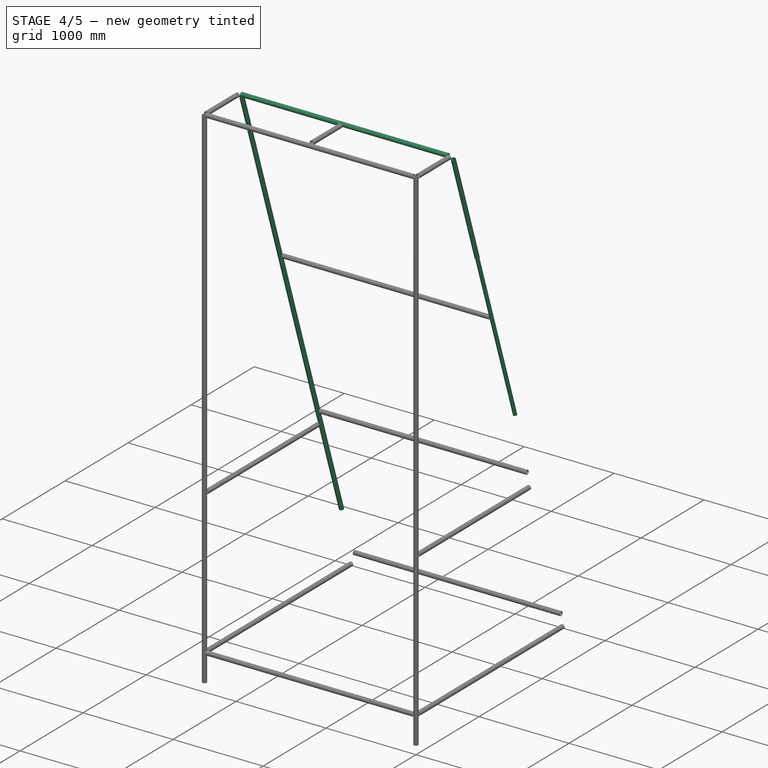
[diagram: stage 4 of 5 — iso view after this stage's code; geometry added in this stage tinted green]
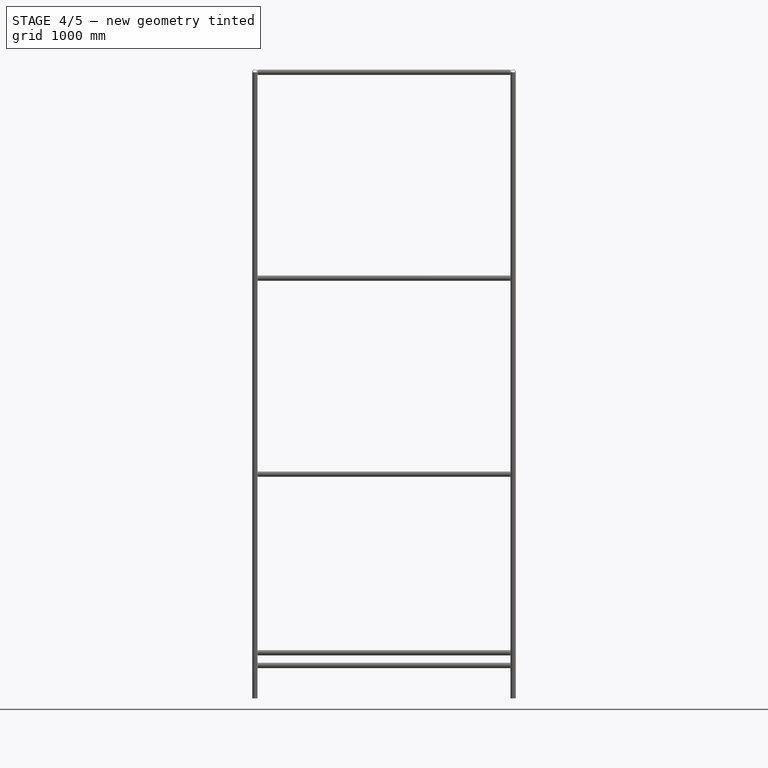
[diagram: stage 4 of 5 — front view after this stage's code; geometry added in this stage tinted green]
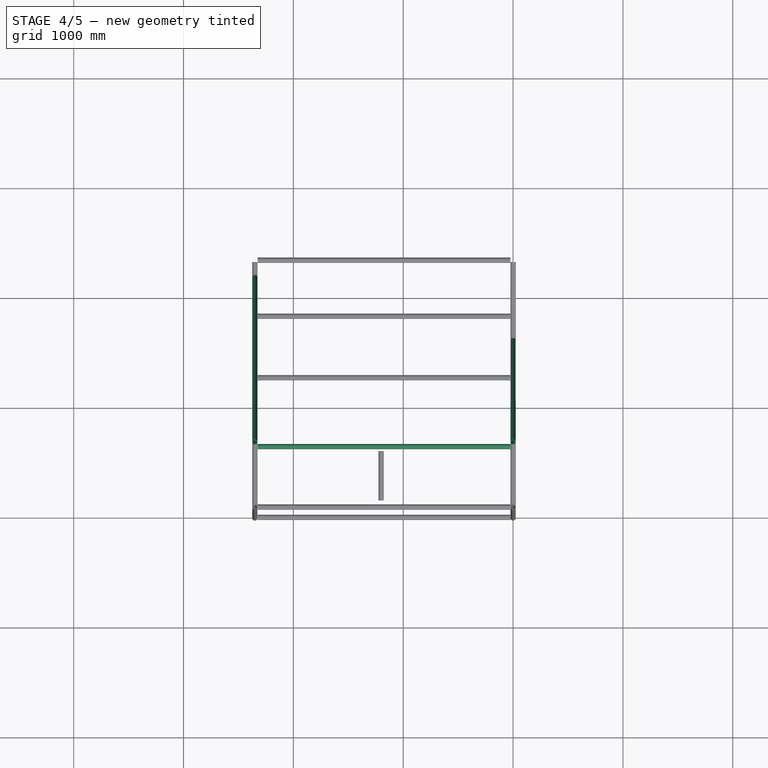
[diagram: stage 4 of 5 — top view after this stage's code; geometry added in this stage tinted green]
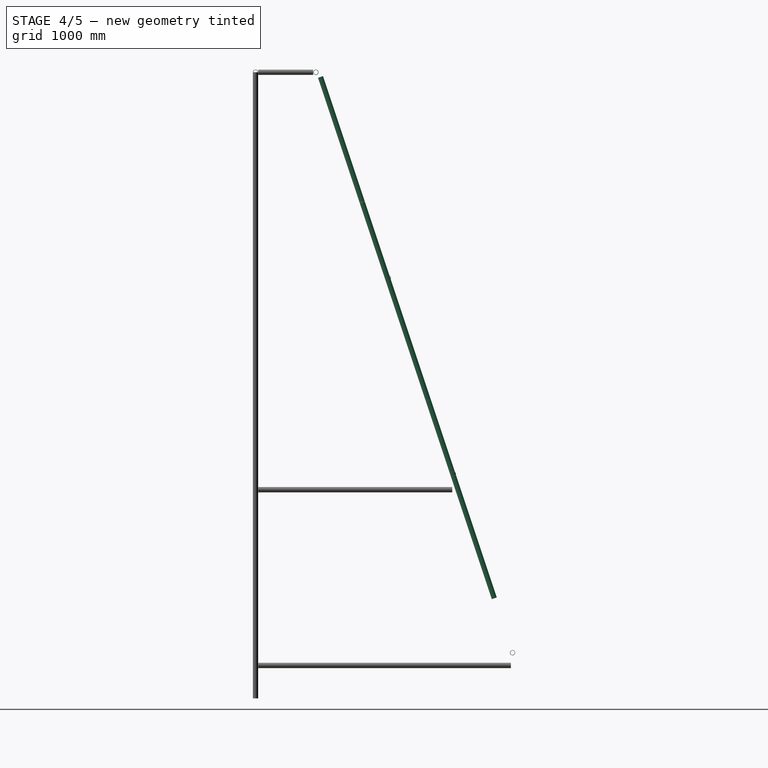
[diagram: stage 4 of 5 — right view after this stage's code; geometry added in this stage tinted green]
FEATURE [Part::Sweep] Sweep_Substract_006
  Frenet = false
  Sections = -> [Circle013]
  Solid = true
  Spine = -> Line008
  Transition = 1
FEATURE [App::DocumentObjectGroup] FcSweep006  label="Pipe_Circle_r_=_24.0_Th_=_4.006"
  Group = -> [Sweep_Externe_006,Line008,Circle012,Sweep_Substract_006,Circle013,Pipe006]
FEATURE [Part::Part2DObjectPython] Line009  label="Line_Master_Line009"  # Draft 2D object (typed FeaturePython)
  Area = 0
  ChamferSize = 0
  Closed = false
  End = (-7.876e-13,971.512,4518.58)
  FilletRadius = 0
  Length = 1200
  MakeFace = false
  Points = (2) [(-1.12465e-12,592.038,5657),(-7.87607e-13,971.512,4518.58)]
  Start = (-1.1246e-12,592.038,5657)
  Subdivisions = 0
FEATURE [Part::Part2DObjectPython] Circle014  label="Forme_Circle014"  # Draft 2D object (typed FeaturePython)
  Area = 0
  FirstAngle = 0
  LastAngle = 0
  MakeFace = false
  Placement = pos=(-1.125e-12,592.038,5657) rot=(1,0,0;3.46334rad)
  Radius = 24
FEATURE [Part::Part2DObjectPython] Circle015  label="Subtract_Circle015"  # Draft 2D object (typed FeaturePython)
  Area = 0
  FirstAngle = 0
  LastAngle = 0
  MakeFace = false
  Placement = pos=(-1.125e-12,592.038,5657) rot=(1,0,0;3.46334rad)
  Radius = 20
FEATURE [Part::Sweep] Sweep_Externe_007
  Frenet = true
  Sections = -> [Circle014]
  Solid = true
  Spine = -> Line009
  Transition = 1
FEATURE [Part::Sweep] Sweep_Substract_007
  Frenet = false
  Sections = -> [Circle015]
  Solid = true
  Spine = -> Line009
  Transition = 1
FEATURE [Part::Cut] Pipe007
  Base = -> Sweep_Externe_007
  Tool = -> Sweep_Substract_007
FEATURE [App::DocumentObjectGroup] FcSweep007  label="Pipe_Circle_r_=_24.0_Th_=_4.007"
  Group = -> [Sweep_Externe_007,Line009,Circle014,Sweep_Substract_007,Circle015,Pipe007]
FEATURE [Part::Part2DObjectPython] Line010  label="Line_Master_Line010"  # Draft 2D object (typed FeaturePython)
  Area = 0
  ChamferSize = 0
  Closed = false
  End = (-2350,2173.81,911.685)
  FilletRadius = 0
  Length = 1900
  MakeFace = false
  Points = (2) [(-2350,1572.98,2714.18),(-2350,2173.81,911.685)]
  Start = (-2350,1572.98,2714.18)
  Subdivisions = 0
FEATURE [Part::Part2DObjectPython] Circle016  label="Forme_Circle016"  # Draft 2D object (typed FeaturePython)
  Area = 0
  FirstAngle = 0
  LastAngle = 0
  MakeFace = false
  Placement = pos=(-2350,1572.98,2714.18) rot=(1,0,0;3.46334rad)
  Radius = 24
FEATURE [Part::Part2DObjectPython] Circle017  label="Subtract_Circle017"  # Draft 2D object (typed FeaturePython)
  Area = 0
  FirstAngle = 0
  LastAngle = 0
  MakeFace = false
  Placement = pos=(-2350,1572.98,2714.18) rot=(1,0,0;3.46334rad)
  Radius = 20
FEATURE [Part::Sweep] Sweep_Externe_008
  Frenet = true
  Sections = -> [Circle016]
  Solid = true
  Spine = -> Line010
  Transition = 1
FEATURE [Part::Sweep] Sweep_Substract_008
  Frenet = false
  Sections = -> [Circle017]
  Solid = true
  Spine = -> Line010
  Transition = 1
FEATURE [Part::Cut] Pipe008
  Base = -> Sweep_Externe_008
  Tool = -> Sweep_Substract_008
FEATURE [App::DocumentObjectGroup] FcSweep008  label="Pipe_Circle_r_=_24.0_Th_=_4.008"
  Group = -> [Sweep_Externe_008,Line010,Circle016,Sweep_Substract_008,Circle017,Pipe008]
FEATURE [Part::Part2DObjectPython] Line011  label="Line_Master_Line011"  # Draft 2D object (typed FeaturePython)
  Area = 0
  ChamferSize = 0
  Closed = false
  End = (-2350,1572.66,2715.13)
  FilletRadius = 0
  Length = 1900
  MakeFace = false
  Points = (2) [(-2350,971.828,4517.63),(-2350,1572.66,2715.13)]
  Start = (-2350,971.828,4517.63)
  Subdivisions = 0
FEATURE [Part::Part2DObjectPython] Circle018  label="Forme_Circle018"  # Draft 2D object (typed FeaturePython)
  Area = 0
  FirstAngle = 0
  LastAngle = 0
  MakeFace = false
  Placement = pos=(-2350,971.828,4517.63) rot=(1,0,0;3.46334rad)
  Radius = 24
FEATURE [Part::Part2DObjectPython] Circle019  label="Subtract_Circle019"  # Draft 2D object (typed FeaturePython)
  Area = 0
  FirstAngle = 0
  LastAngle = 0
  MakeFace = false
  Placement = pos=(-2350,971.828,4517.63) rot=(1,0,0;3.46334rad)
  Radius = 20
FEATURE [Part::Sweep] Sweep_Externe_009
  Frenet = true
  Sections = -> [Circle018]
  Solid = true
  Spine = -> Line011
  Transition = 1
FEATURE [Part::Sweep] Sweep_Substract_009
  Frenet = false
  Sections = -> [Circle019]
  Solid = true
  Spine = -> Line011
  Transition = 1
FEATURE [Part::Cut] Pipe009
  Base = -> Sweep_Externe_009
  Tool = -> Sweep_Substract_009
FEATURE [App::DocumentObjectGroup] FcSweep009  label="Pipe_Circle_r_=_24.0_Th_=_4.009"
  Group = -> [Sweep_Externe_009,Line011,Circle018,Sweep_Substract_009,Circle019,Pipe009]
FEATURE [Part::Part2DObjectPython] Line012  label="Line_Master_Line012"  # Draft 2D object (typed FeaturePython)
  Area = 0
  ChamferSize = 0
  Closed = false
  End = (-2350,971.512,4518.58)
  FilletRadius = 0
  Length = 1200
  MakeFace = false
  Points = (2) [(-2350,592.038,5657),(-2350,971.512,4518.58)]
  Start = (-2350,592.038,5657)
  Subdivisions = 0
FEATURE [Part::Part2DObjectPython] Circle020  label="Forme_Circle020"  # Draft 2D object (typed FeaturePython)
  Area = 0
  FirstAngle = 0
  LastAngle = 0
  MakeFace = false
  Placement = pos=(-2350,592.038,5657) rot=(1,0,0;3.46334rad)
  Radius = 24
FEATURE [Part::Part2DObjectPython] Circle021  label="Subtract_Circle021"  # Draft 2D object (typed FeaturePython)
  Area = 0
  FirstAngle = 0
  LastAngle = 0
  MakeFace = false
  Placement = pos=(-2350,592.038,5657) rot=(1,0,0;3.46334rad)
  Radius = 20
FEATURE [Part::Sweep] Sweep_Externe_010
  Frenet = true
  Sections = -> [Circle020]
  Solid = true
  Spine = -> Line012
  Transition = 1
FEATURE [Part::Sweep] Sweep_Substract_010
  Frenet = false
  Sections = -> [Circle021]
  Solid = true
  Spine = -> Line012
  Transition = 1
FEATURE [Part::Cut] Pipe010
  Base = -> Sweep_Externe_010
  Tool = -> Sweep_Substract_010
FEATURE [App::DocumentObjectGroup] FcSweep010  label="Pipe_Circle_r_=_24.0_Th_=_4.010"
  Group = -> [Sweep_Externe_010,Line012,Circle020,Sweep_Substract_010,Circle021,Pipe010]
FEATURE [Part::Part2DObjectPython] Line013  label="Line_Master_Line013"  # Draft 2D object (typed FeaturePython)
  Area = 0
  ChamferSize = 0
  Closed = false
  End = (-25,550,5700)
  FilletRadius = 0
  Length = 2300
  MakeFace = false
  Points = (2) [(-2325,550,5700),(-25,550,5700)]
  Start = (-2325,550,5700)
  Subdivisions = 0
FEATURE [Part::Part2DObjectPython] Circle022  label="Forme_Circle022"  # Draft 2D object (typed FeaturePython)
  Area = 0
  FirstAngle = 0
  LastAngle = 0
  MakeFace = false
  Placement = pos=(-2325,550,5700) rot=(0,1,0;1.5708rad)
  Radius = 24
FEATURE [Part::Part2DObjectPython] Circle023  label="Subtract_Circle023"  # Draft 2D object (typed FeaturePython)
  Area = 0
  FirstAngle = 0
  LastAngle = 0
  MakeFace = false
  Placement = pos=(-2325,550,5700) rot=(0,1,0;1.5708rad)
  Radius = 20
FEATURE [Part::Sweep] Sweep_Externe_011
  Frenet = true
  Sections = -> [Circle022]
  Solid = true
  Spine = -> Line013
  Transition = 1
FEATURE [Part::Sweep] Sweep_Substract_011
  Frenet = false
  Sections = -> [Circle023]
  Solid = true
  Spine = -> Line013
  Transition = 1
FEATURE [Part::Cut] Pipe011
  Base = -> Sweep_Externe_011
  Tool = -> Sweep_Substract_011
FEATURE [App::DocumentObjectGroup] FcSweep011  label="Pipe_Circle_r_=_24.0_Th_=_4.011"
  Group = -> [Sweep_Externe_011,Line013,Circle022,Sweep_Substract_011,Circle023,Pipe011]
FEATURE [Part::Part2DObjectPython] Line014  label="Line_Master_Line014"  # Draft 2D object (typed FeaturePython)
  Area = 0
  ChamferSize = 0
  Closed = false
  End = (-25,1.2657e-12,5700)
  FilletRadius = 0
  Length = 2300
  MakeFace = false
  Points = (2) [(-2325,1.26565e-12,5700),(-25,1.26565e-12,5700)]
  Start = (-2325,1.2657e-12,5700)
  Subdivisions = 0
FEATURE [Part::Part2DObjectPython] Circle024  label="Forme_Circle024"  # Draft 2D object (typed FeaturePython)
  Area = 0
  FirstAngle = 0
  LastAngle = 0
  MakeFace = false
  Placement = pos=(-2325,1.266e-12,5700) rot=(0,1,0;1.5708rad)
  Radius = 24
FEATURE [Part::Part2DObjectPython] Circle025  label="Subtract_Circle025"  # Draft 2D object (typed FeaturePython)
  Area = 0
  FirstAngle = 0
  LastAngle = 0
  MakeFace = false
  Placement = pos=(-2325,1.266e-12,5700) rot=(0,1,0;1.5708rad)
  Radius = 20
FEATURE [Part::Sweep] Sweep_Externe_012
  Frenet = true
  Sections = -> [Circle024]
  Solid = true
  Spine = -> Line014
  Transition = 1
FEATURE [Part::Cut] Pipe012
  Base = -> Sweep_Externe_012
  Tool = -> Sweep_Substract_012
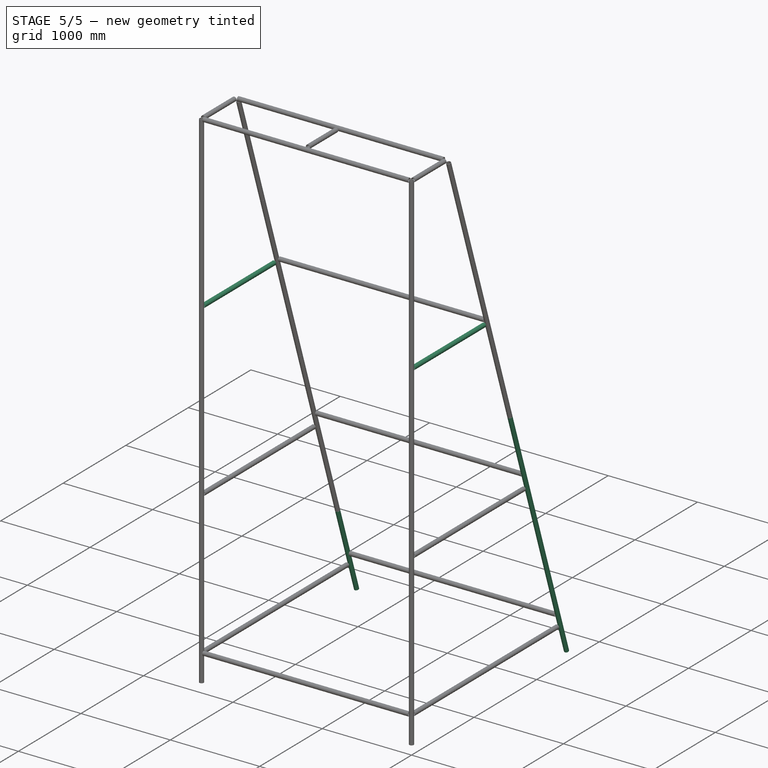
[diagram: stage 5 of 5 — iso view after this stage's code; geometry added in this stage tinted green]
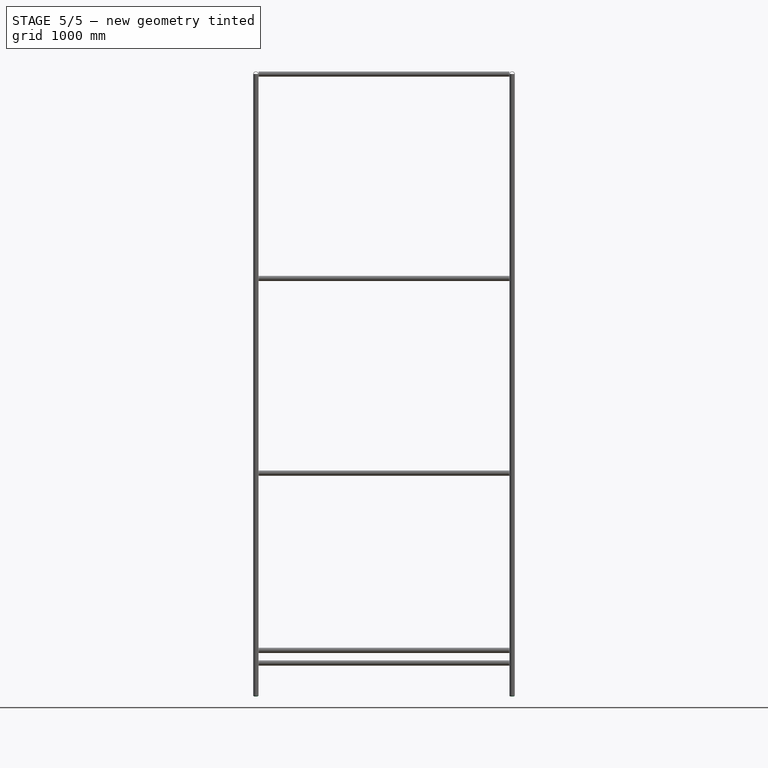
[diagram: stage 5 of 5 — front view after this stage's code; geometry added in this stage tinted green]
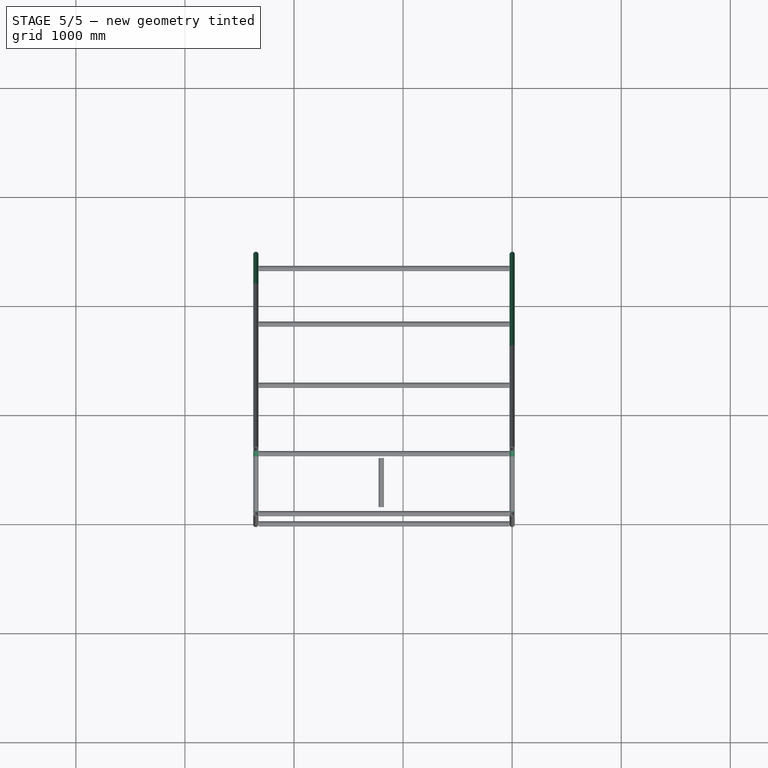
[diagram: stage 5 of 5 — top view after this stage's code; geometry added in this stage tinted green]
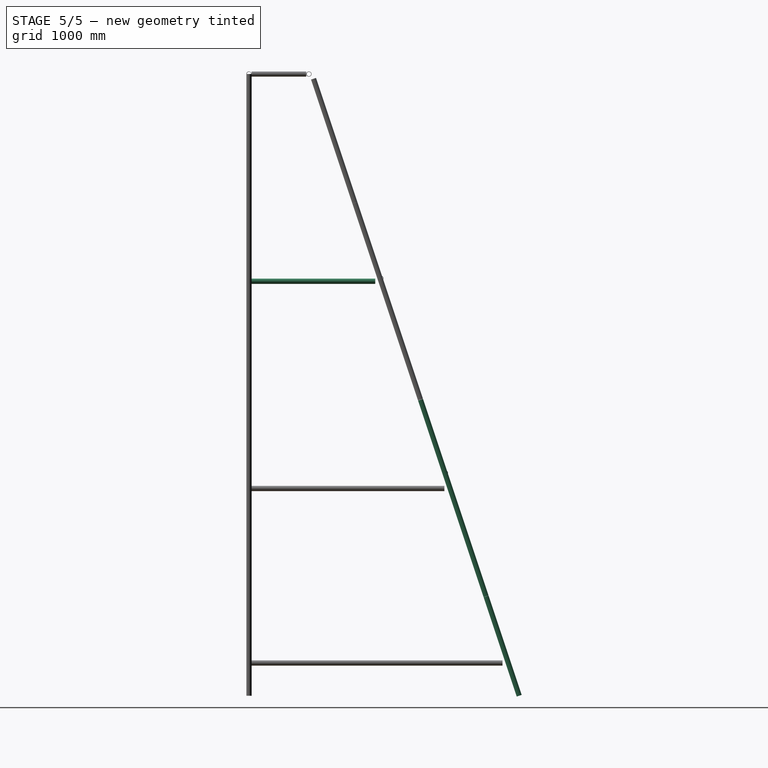
[diagram: stage 5 of 5 — right view after this stage's code; geometry added in this stage tinted green]
FEATURE [Spreadsheet::Sheet] Spreadsheet  label="d"
  cells = A1='tubeA_length; B1(tubeA_length)==5700 / 3
FEATURE [Sketcher::SketchObject] Sketch  label="right_side_sketch"
  FullyConstrained = true
  MapMode = 5
  Placement = pos=(0,0,0) rot=(0.57735,0.57735,0.57735;2.0944rad)
  Support = -> [YZ_Plane]
  expr: Constraints[10] = 2 * Spreadsheet.tubeA_length
  expr: Constraints[17] = 3 * Spreadsheet.tubeA_length
  expr: Constraints[20] = Spreadsheet.tubeA_length
  expr: Constraints[21] = 2 * Spreadsheet.tubeA_length
  expr: Constraints[29] = Spreadsheet.tubeA_length
  expr: Constraints[2] = Spreadsheet.tubeA_length
  expr: Constraints[32] = Spreadsheet.tubeA_length
  expr: Constraints[4] = Spreadsheet.tubeA_length
  expr: Constraints[5] = Spreadsheet.tubeA_length
  expr: Constraints[8] = Spreadsheet.tubeA_length
  expr: Constraints[9] = 0
  sketch-geometry (12):
    g0: LineSegment StartX=0 StartY=0 StartZ=0 EndX=0 EndY=1900 EndZ=0
    g1: LineSegment StartX=0 StartY=1900 StartZ=0 EndX=0 EndY=3800 EndZ=0
    g2: LineSegment StartX=0 StartY=3800 StartZ=0 EndX=0 EndY=5700 EndZ=0
    g3: LineSegment StartX=25 StartY=300 StartZ=0 EndX=2325 EndY=300 EndZ=0
    g4: LineSegment StartX=25 StartY=5700 StartZ=0 EndX=525 EndY=5700 EndZ=0
    g5: LineSegment StartX=25 StartY=1900 StartZ=0 EndX=1791.67 EndY=1900 EndZ=0
    g6: LineSegment StartX=25 StartY=3800 StartZ=0 EndX=1158.33 EndY=3800 EndZ=0
    g7: LineSegment StartX=525 StartY=5700 StartZ=0 EndX=2325 EndY=300 EndZ=0
    g8: LineSegment StartX=2174.13 StartY=910.736 StartZ=0 EndX=2477.7 EndY=0 EndZ=0
    g9: LineSegment StartX=1572.98 StartY=2714.18 StartZ=0 EndX=2173.81 EndY=911.685 EndZ=0
    g10: LineSegment StartX=971.828 StartY=4517.63 StartZ=0 EndX=1572.66 EndY=2715.13 EndZ=0
    g11: LineSegment StartX=592.038 StartY=5657 StartZ=0 EndX=971.512 EndY=4518.58 EndZ=0
  constraints (45):
    c: Coincident(g0,g-1)
    c: Vertical(g0)
    c: DistanceY(g0,g0) = 1900
    c: Vertical(g1)
    c: DistanceY(g-1,g1) = 1900
    c: DistanceY(g1,g1) = 1900
    c: DistanceX(g-1,g1) = 0
    c: Vertical(g2)
    c: DistanceY(g2,g2) = 1900
    c: DistanceX(g-1,g2) = 0
    c: DistanceY(g-1,g2) = 3800
    c: Horizontal(g3)
    c: DistanceX(g-1,g3) = 25
    c: DistanceY(g-1,g3) = 300
    c: Horizontal(g4)
    c: DistanceX(g4,g4) = 500
    c: DistanceX(g-1,g4) = 25
    c: DistanceY(g-1,g4) = 5700
    c: Horizontal(g5)
    c: Horizontal(g6)
    c: DistanceY(g-1,g5) = 1900
    c: DistanceY(g-1,g6) = 3800
    c: DistanceX(g-1,g6) = 25
    c: DistanceX(g-1,g5) = 25
    c: Coincident(g7,g3)
    c: Coincident(g7,g4)
    c: PointOnObject(g8,g-1)
    c: Parallel(g8,g7)
    c: Parallel(g9,g7)
    c: Distance(g9,g9) = 1900
    c: Parallel(g11,g10)
    c: Parallel(g10,g7)
    c: Distance(g10,g10) = 1900
    c: Distance(g10,g7) = 50
    c: Distance(g9,g7) = 50
    c: Distance(g10,g9) = 1
    c: DistanceX(g3,g3) = 2300
    c: Distance(g8,g8) = 960
    c: Distance(g8,g7) = 50
    c: Distance(g11,g11) = 1200
    c: Distance(g11,g7) = 50
    c: Distance(g10,g11) = 1
    c: Distance(g8,g9) = 1
    c: Distance(g6,g10) = 50
    c: Distance(g5,g9) = 50
FEATURE [Sketcher::SketchObject] Sketch001  label="front_sketch"
  FullyConstrained = true
  MapMode = 5
  Placement = pos=(0,0,0) rot=(1,0,0;1.5708rad)
  Support = -> [XZ_Plane]
  expr: Constraints[7] = 3 * Spreadsheet.tubeA_length
  sketch-geometry (2):
    g0: LineSegment StartX=-2325 StartY=300 StartZ=0 EndX=-25 EndY=300 EndZ=0
    g1: LineSegment StartX=-2325 StartY=5700 StartZ=0 EndX=-25 EndY=5700 EndZ=0
  constraints (8):
    c: Horizontal(g0)
    c: Horizontal(g1)
    c: Distance(g1,g1) = 2300
    c: Distance(g0,g0) = 2300
    c: DistanceY(g-1,g0) = 300
    c: DistanceX(g1,g-1) = 25
    c: DistanceX(g0) = -25
    c: DistanceY(g-1,g1) = 5700
FEATURE [Sketcher::SketchObject] Sketch002  label="left_side_sketch"
  AttachmentOffset = pos=(0,0,-2350) rot=(0,0,1;0rad)
  FullyConstrained = true
  MapMode = 5
  Placement = pos=(-2350,5.218e-13,-5.218e-13) rot=(0.57735,0.57735,0.57735;2.0944rad)
  Support = -> [YZ_Plane001]
  expr: Constraints[10] = 2 * Spreadsheet001.tubeA_length
  expr: Constraints[17] = 3 * Spreadsheet001.tubeA_length
  expr: Constraints[20] = Spreadsheet001.tubeA_length
  expr: Constraints[21] = 2 * Spreadsheet001.tubeA_length
  expr: Constraints[29] = Spreadsheet001.tubeA_length
  expr: Constraints[2] = Spreadsheet001.tubeA_length
  expr: Constraints[32] = Spreadsheet001.tubeA_length
  expr: Constraints[4] = Spreadsheet001.tubeA_length
  expr: Constraints[5] = Spreadsheet001.tubeA_length
  expr: Constraints[8] = Spreadsheet001.tubeA_length
  expr: Constraints[9] = 0
  sketch-geometry (12):
    g0: LineSegment StartX=0 StartY=0 StartZ=0 EndX=0 EndY=1900 EndZ=0
    g1: LineSegment StartX=0 StartY=1900 StartZ=0 EndX=0 EndY=3800 EndZ=0
    g2: LineSegment StartX=0 StartY=3800 StartZ=0 EndX=0 EndY=5700 EndZ=0
    g3: LineSegment StartX=25 StartY=300 StartZ=0 EndX=2325 EndY=300 EndZ=0
    g4: LineSegment StartX=25 StartY=5700 StartZ=0 EndX=525 EndY=5700 EndZ=0
    g5: LineSegment StartX=25 StartY=1900 StartZ=0 EndX=1791.67 EndY=1900 EndZ=0
    g6: LineSegment StartX=25 StartY=3800 StartZ=0 EndX=1158.33 EndY=3800 EndZ=0
    g7: LineSegment StartX=525 StartY=5700 StartZ=0 EndX=2325 EndY=300 EndZ=0
    g8: LineSegment StartX=2174.13 StartY=910.736 StartZ=0 EndX=2477.7 EndY=0 EndZ=0
    g9: LineSegment StartX=1572.98 StartY=2714.18 StartZ=0 EndX=2173.81 EndY=911.685 EndZ=0
    g10: LineSegment StartX=971.828 StartY=4517.63 StartZ=0 EndX=1572.66 EndY=2715.13 EndZ=0
    g11: LineSegment StartX=592.038 StartY=5657 StartZ=0 EndX=971.512 EndY=4518.58 EndZ=0
  constraints (45):
    c: Coincident(g0,g-1)
    c: Vertical(g0)
    c: DistanceY(g0,g0) = 1900
    c: Vertical(g1)
    c: DistanceY(g-1,g1) = 1900
    c: DistanceY(g1,g1) = 1900
    c: DistanceX(g-1,g1) = 0
    c: Vertical(g2)
    c: DistanceY(g2,g2) = 1900
    c: DistanceX(g-1,g2) = 0
    c: DistanceY(g-1,g2) = 3800
    c: Horizontal(g3)
    c: DistanceX(g-1,g3) = 25
    c: DistanceY(g-1,g3) = 300
    c: Horizontal(g4)
    c: DistanceX(g4,g4) = 500
    c: DistanceX(g-1,g4) = 25
    c: DistanceY(g-1,g4) = 5700
    c: Horizontal(g5)
    c: Horizontal(g6)
    c: DistanceY(g-1,g5) = 1900
    c: DistanceY(g-1,g6) = 3800
    c: DistanceX(g-1,g6) = 25
    c: DistanceX(g-1,g5) = 25
    c: Coincident(g7,g3)
    c: Coincident(g7,g4)
    c: PointOnObject(g8,g-1)
    c: Parallel(g8,g7)
    c: Parallel(g9,g7)
    c: Distance(g9,g9) = 1900
    c: Parallel(g11,g10)
    c: Parallel(g10,g7)
    c: Distance(g10,g10) = 1900
    c: Distance(g10,g7) = 50
    c: Distance(g9,g7) = 50
    c: Distance(g10,g9) = 1
    c: DistanceX(g3,g3) = 2300
    c: Distance(g8,g8) = 960
    c: Distance(g8,g7) = 50
    c: Distance(g11,g11) = 1200
    c: Distance(g11,g7) = 50
    c: Distance(g10,g11) = 1
    c: Distance(g8,g9) = 1
    c: Distance(g6,g10) = 50
    c: Distance(g5,g9) = 50
FEATURE [Spreadsheet::Sheet] Spreadsheet001  label="d001"
  cells = A1='tubeA_length; B1(tubeA_length)==5700 / 3
FEATURE [App::Part] Part
  Group = -> [Sketch,Sketch001,Sketch002,Spreadsheet001]
  Origin = -> Origin
FEATURE [Part::Part2DObjectPython] Line  # Draft 2D object (typed FeaturePython)
  Area = 0
  ChamferSize = 0
  Closed = false
  End = (-1.3642e-12,612.961,5629.02)
  FilletRadius = 0
  Length = 2350
  MakeFace = true
  Placement = pos=(-2350,612.961,5629.02) rot=(0.2362,0.333066,0.91284;2.80897rad)
  Points = (2) [(0,0,0),(-1966.17,-340.828,1241.18)]
  Start = (-2350,612.961,5629.02)
  Subdivisions = 0
FEATURE [Part::Part2DObjectPython] Line001  # Draft 2D object (typed FeaturePython)
  Area = 0
  ChamferSize = 0
  Closed = false
  End = (0,2477.7,-9.808e-13)
  FilletRadius = 0
  Length = 2350
  MakeFace = true
  Placement = pos=(-2350,2477.7,-1.663e-12) rot=(0.279457,0.3955,0.874919;2.53297rad)
  Points = (2) [(0,0,0),(-1593.93,-702.699,1577.38)]
  Start = (-2350,2477.7,-1.6629e-12)
  Subdivisions = 0
FEATURE [Part::RuledSurface] Ruled_Surface
  Curve1 = -> Line
  Curve2 = -> Line001
  Orientation = 0
FEATURE [Sketcher::SketchObject] Sketch003
  FullyConstrained = false
  MapMode = 45
  Placement = pos=(-1175,1545.33,2814.51) rot=(-1,0,0;1.2509rad)
  Support = -> [Ruled_Surface]
  sketch-geometry (3):
    g0: LineSegment StartX=-1150 StartY=2526.88 StartZ=0 EndX=1150 EndY=2526.88 EndZ=0
    g1: LineSegment StartX=-1150 StartY=814.649 StartZ=0 EndX=1150 EndY=814.649 EndZ=0
    g2: LineSegment StartX=-1150 StartY=-1065.67 StartZ=0 EndX=1150 EndY=-1065.67 EndZ=0
  constraints (9):
    c: Horizontal(g0)
    c: Horizontal(g1)
    c: Horizontal(g2)
    c: Equal(g2,g1)
    c: Equal(g1,g0)
    c: DistanceX(g0,g0) = 2300
    c: DistanceX(g-1,g0) = 1150
    c: DistanceX(g-1,g1) = 1150
    c: DistanceX(g-1,g2) = 1150
FEATURE [Sketcher::SketchObject] Sketch004  label="front_sketch001"
  FullyConstrained = true
  MapMode = 5
  Placement = pos=(0,0,0) rot=(1,0,0;1.5708rad)
  Support = -> [XZ_Plane001]
  expr: Constraints[3] = 3 * Spreadsheet002.tubeA_length
  sketch-geometry (1):
    g0: LineSegment StartX=-2325 StartY=5700 StartZ=0 EndX=-25 EndY=5700 EndZ=0
  constraints (4):
    c: Horizontal(g0)
    c: Distance(g0,g0) = 2300
    c: DistanceX(g0,g-1) = 25
    c: DistanceY(g-1,g0) = 5700
FEATURE [Part::Mirroring] Mirror001  label="front_sketch (mirrored)001"
  Base = (-1.2046e-12,275,5700)
  Normal = (2e-16,1,0)
  Source = -> Sketch004
FEATURE [Spreadsheet::Sheet] Spreadsheet002  label="d002"
  cells = A1='tubeA_length; B1(tubeA_length)==5700 / 3
FEATURE [Part::RuledSurface] Ruled_Surface001
  Curve1 = -> Sketch003
  Curve2 = -> Sketch003
  Orientation = 0
FEATURE [Part::RuledSurface] Ruled_Surface002
  Curve1 = -> Mirror001 [Edge1]
  Curve2 = -> Sketch001 [Edge2]
  Orientation = 0
FEATURE [Sketcher::SketchObject] Sketch005
  FullyConstrained = false
  MapMode = 45
  Placement = pos=(-1175,275,5700) rot=(0,0,1;1.5708rad)
  Support = -> [Ruled_Surface002]
  sketch-geometry (1):
    g0: LineSegment StartX=-215.326 StartY=25.7095 StartZ=0 EndX=234.674 EndY=25.7095 EndZ=0
  constraints (2):
    c: Horizontal(g0)
    c: DistanceX(g0,g0) = 450
FEATURE [Part::Part2DObjectPython] Line002  label="Line_Master_Line002"  # Draft 2D object (typed FeaturePython)
  Area = 0
  ChamferSize = 0
  Closed = false
  End = (-2350,1158.33,3800)
  FilletRadius = 0
  Length = 1133.33
  MakeFace = false
  Points = (2) [(-2350,25,3800),(-2350,1158.33,3800)]
  Start = (-2350,25,3800)
  Subdivisions = 0
FEATURE [Part::Part2DObjectPython] Circle  label="Forme_Circle"  # Draft 2D object (typed FeaturePython)
  Area = 0
  FirstAngle = 0
  LastAngle = 0
  MakeFace = false
  Placement = pos=(-2350,25,3800) rot=(-1,0,0;1.5708rad)
  Radius = 24
FEATURE [Part::Part2DObjectPython] Circle001  label="Subtract_Circle001"  # Draft 2D object (typed FeaturePython)
  Area = 0
  FirstAngle = 0
  LastAngle = 0
  MakeFace = false
  Placement = pos=(-2350,25,3800) rot=(-1,0,0;1.5708rad)
  Radius = 20
FEATURE [Part::Sweep] Sweep_Externe_
  Frenet = true
  Sections = -> [Circle]
  Solid = true
  Spine = -> Line002
  Transition = 1
FEATURE [Part::Sweep] Sweep_Substract_
  Frenet = false
  Sections = -> [Circle001]
  Solid = true
  Spine = -> Line002
  Transition = 1
FEATURE [Part::Cut] Pipe
  Base = -> Sweep_Externe_
  Tool = -> Sweep_Substract_
FEATURE [App::DocumentObjectGroup] FcSweep  label="Pipe_Circle_r_=_24.0_Th_=_4.0"
  Group = -> [Sweep_Externe_,Line002,Circle,Sweep_Substract_,Circle001,Pipe]
FEATURE [Part::Part2DObjectPython] Line003  label="Line_Master_Line003"  # Draft 2D object (typed FeaturePython)
  Area = 0
  ChamferSize = 0
  Closed = false
  End = (-5.866e-13,1158.33,3800)
  FilletRadius = 0
  Length = 1133.33
  MakeFace = false
  Points = (2) [(-8.38218e-13,25,3800),(-5.86568e-13,1158.33,3800)]
  Start = (-8.382e-13,25,3800)
  Subdivisions = 0
FEATURE [Part::Part2DObjectPython] Circle002  label="Forme_Circle002"  # Draft 2D object (typed FeaturePython)
  Area = 0
  FirstAngle = 0
  LastAngle = 0
  MakeFace = false
  Placement = pos=(-8.38e-13,25,3800) rot=(-1,0,0;1.5708rad)
  Radius = 24
FEATURE [Part::Part2DObjectPython] Circle003  label="Subtract_Circle003"  # Draft 2D object (typed FeaturePython)
  Area = 0
  FirstAngle = 0
  LastAngle = 0
  MakeFace = false
  Placement = pos=(-8.38e-13,25,3800) rot=(-1,0,0;1.5708rad)
  Radius = 20
FEATURE [Part::Sweep] Sweep_Externe_001
  Frenet = true
  Sections = -> [Circle002]
  Solid = true
  Spine = -> Line003
  Transition = 1
FEATURE [Part::Sweep] Sweep_Substract_001
  Frenet = false
  Sections = -> [Circle003]
  Solid = true
  Spine = -> Line003
  Transition = 1
FEATURE [Part::Cut] Pipe001
  Base = -> Sweep_Externe_001
  Tool = -> Sweep_Substract_001
FEATURE [App::DocumentObjectGroup] FcSweep001  label="Pipe_Circle_r_=_24.0_Th_=_4.001"
  Group = -> [Sweep_Externe_001,Line003,Circle002,Sweep_Substract_001,Circle003,Pipe001]
FEATURE [Part::Part2DObjectPython] Line004  label="Line_Master_Line004"  # Draft 2D object (typed FeaturePython)
  Area = 0
  ChamferSize = 0
  Closed = false
  End = (-2350,2477.7,-1.072e-12)
  FilletRadius = 0
  Length = 960
  MakeFace = false
  Points = (2) [(-2350,2174.13,910.736),(-2350,2477.7,-1.07197e-12)]
  Start = (-2350,2174.13,910.736)
  Subdivisions = 0
FEATURE [Part::Part2DObjectPython] Circle004  label="Forme_Circle004"  # Draft 2D object (typed FeaturePython)
  Area = 0
  FirstAngle = 0
  LastAngle = 0
  MakeFace = false
  Placement = pos=(-2350,2174.13,910.736) rot=(1,0,0;3.46334rad)
  Radius = 24
FEATURE [Part::Part2DObjectPython] Circle005  label="Subtract_Circle005"  # Draft 2D object (typed FeaturePython)
  Area = 0
  FirstAngle = 0
  LastAngle = 0
  MakeFace = false
  Placement = pos=(-2350,2174.13,910.736) rot=(1,0,0;3.46334rad)
  Radius = 20
FEATURE [Part::Sweep] Sweep_Externe_002
  Frenet = true
  Sections = -> [Circle004]
  Solid = true
  Spine = -> Line004
  Transition = 1
FEATURE [Part::Sweep] Sweep_Substract_002
  Frenet = false
  Sections = -> [Circle005]
  Solid = true
  Spine = -> Line004
  Transition = 1
FEATURE [Part::Cut] Pipe002
  Base = -> Sweep_Externe_002
  Tool = -> Sweep_Substract_002
FEATURE [App::DocumentObjectGroup] FcSweep002  label="Pipe_Circle_r_=_24.0_Th_=_4.002"
  Group = -> [Sweep_Externe_002,Line004,Circle004,Sweep_Substract_002,Circle005,Pipe002]
FEATURE [Part::Part2DObjectPython] Line005  label="Line_Master_Line005"  # Draft 2D object (typed FeaturePython)
  Area = 0
  ChamferSize = 0
  Closed = false
  End = (5.502e-13,2477.7,-5.502e-13)
  FilletRadius = 0
  Length = 960
  MakeFace = false
  Points = (2) [(2.80529e-13,2174.13,910.736),(5.50161e-13,2477.7,-5.50161e-13)]
  Start = (2.805e-13,2174.13,910.736)
  Subdivisions = 0
FEATURE [Part::Part2DObjectPython] Circle006  label="Forme_Circle006"  # Draft 2D object (typed FeaturePython)
  Area = 0
  FirstAngle = 0
  LastAngle = 0
  MakeFace = false
  Placement = pos=(2.81e-13,2174.13,910.736) rot=(1,0,0;3.46334rad)
  Radius = 24
FEATURE [Part::Part2DObjectPython] Circle007  label="Subtract_Circle007"  # Draft 2D object (typed FeaturePython)
  Area = 0
  FirstAngle = 0
  LastAngle = 0
  MakeFace = false
  Placement = pos=(2.81e-13,2174.13,910.736) rot=(1,0,0;3.46334rad)
  Radius = 20
FEATURE [Part::Sweep] Sweep_Externe_003
  Frenet = true
  Sections = -> [Circle006]
  Solid = true
  Spine = -> Line005
  Transition = 1
FEATURE [Part::Sweep] Sweep_Substract_003
  Frenet = false
  Sections = -> [Circle007]
  Solid = true
  Spine = -> Line005
  Transition = 1
FEATURE [Part::Cut] Pipe003
  Base = -> Sweep_Externe_003
  Tool = -> Sweep_Substract_003
FEATURE [App::DocumentObjectGroup] FcSweep003  label="Pipe_Circle_r_=_24.0_Th_=_4.003"
  Group = -> [Sweep_Externe_003,Line005,Circle006,Sweep_Substract_003,Circle007,Pipe003]
FEATURE [Part::Part2DObjectPython] Line006  label="Line_Master_Line006"  # Draft 2D object (typed FeaturePython)
  Area = 0
  ChamferSize = 0
  Closed = false
  End = (1.34e-14,1873.39,1812.93)
  FilletRadius = 0
  Length = 1901
  MakeFace = false
  Points = (2) [(-5.20503e-13,1272.24,3616.38),(1.34247e-14,1873.39,1812.93)]
  Start = (-5.205e-13,1272.24,3616.38)
  Subdivisions = 0
FEATURE [Part::Part2DObjectPython] Circle008  label="Forme_Circle008"  # Draft 2D object (typed FeaturePython)
  Area = 0
  FirstAngle = 0
  LastAngle = 0
  MakeFace = false
  Placement = pos=(-5.21e-13,1272.24,3616.38) rot=(1,0,0;3.46334rad)
  Radius = 24
FEATURE [Part::Part2DObjectPython] Circle009  label="Subtract_Circle009"  # Draft 2D object (typed FeaturePython)
  Area = 0
  FirstAngle = 0
  LastAngle = 0
  MakeFace = false
  Placement = pos=(-5.21e-13,1272.24,3616.38) rot=(1,0,0;3.46334rad)
  Radius = 20
FEATURE [App::DocumentObjectGroup] FcSweep004  label="Pipe_Circle_r_=_24.0_Th_=_4.004"
  Group = -> [Line006,Circle008,Circle009]
FEATURE [Part::Part2DObjectPython] Line007  label="Line_Master_Line007"  # Draft 2D object (typed FeaturePython)
  Area = 0
  ChamferSize = 0
  Closed = false
  End = (2.802e-13,2173.81,911.685)
  FilletRadius = 0
  Length = 1900
  MakeFace = false
  Points = (2) [(-2.53399e-13,1572.98,2714.18),(2.80248e-13,2173.81,911.685)]
  Start = (-2.534e-13,1572.98,2714.18)
  Subdivisions = 0
FEATURE [Part::Part2DObjectPython] Circle010  label="Forme_Circle010"  # Draft 2D object (typed FeaturePython)
  Area = 0
  FirstAngle = 0
  LastAngle = 0
  MakeFace = false
  Placement = pos=(-2.53e-13,1572.98,2714.18) rot=(1,0,0;3.46334rad)
  Radius = 24
FEATURE [Part::Part2DObjectPython] Circle011  label="Subtract_Circle011"  # Draft 2D object (typed FeaturePython)
  Area = 0
  FirstAngle = 0
  LastAngle = 0
  MakeFace = false
  Placement = pos=(-2.53e-13,1572.98,2714.18) rot=(1,0,0;3.46334rad)
  Radius = 20
FEATURE [Part::Sweep] Sweep_Externe_005
  Frenet = true
  Sections = -> [Circle010]
  Solid = true
  Spine = -> Line007
  Transition = 1
FEATURE [Part::Sweep] Sweep_Substract_005
  Frenet = false
  Sections = -> [Circle011]
  Solid = true
  Spine = -> Line007
  Transition = 1
FEATURE [Part::Cut] Pipe005
  Base = -> Sweep_Externe_005
  Tool = -> Sweep_Substract_005
FEATURE [App::DocumentObjectGroup] FcSweep005  label="Pipe_Circle_r_=_24.0_Th_=_4.005"
  Group = -> [Sweep_Externe_005,Line007,Circle010,Sweep_Substract_005,Circle011,Pipe005]
FEATURE [Part::Part2DObjectPython] Line008  label="Line_Master_Line008"  # Draft 2D object (typed FeaturePython)
  Area = 0
  ChamferSize = 0
  Closed = false
  End = (-2.537e-13,1572.66,2715.13)
  FilletRadius = 0
  Length = 1900
  MakeFace = false
  Points = (2) [(-7.87326e-13,971.828,4517.63),(-2.53679e-13,1572.66,2715.13)]
  Start = (-7.873e-13,971.828,4517.63)
  Subdivisions = 0
FEATURE [Part::Part2DObjectPython] Circle012  label="Forme_Circle012"  # Draft 2D object (typed FeaturePython)
  Area = 0
  FirstAngle = 0
  LastAngle = 0
  MakeFace = false
  Placement = pos=(-7.87e-13,971.828,4517.63) rot=(1,0,0;3.46334rad)
  Radius = 24
FEATURE [Part::Part2DObjectPython] Circle013  label="Subtract_Circle013"  # Draft 2D object (typed FeaturePython)
  Area = 0
  FirstAngle = 0
  LastAngle = 0
  MakeFace = false
  Placement = pos=(-7.87e-13,971.828,4517.63) rot=(1,0,0;3.46334rad)
  Radius = 20
FEATURE [Part::Sweep] Sweep_Externe_006
  Frenet = true
  Sections = -> [Circle012]
  Solid = true
  Spine = -> Line008
  Transition = 1
FEATURE [Part::Cut] Pipe006
  Base = -> Sweep_Externe_006
  Tool = -> Sweep_Substract_006
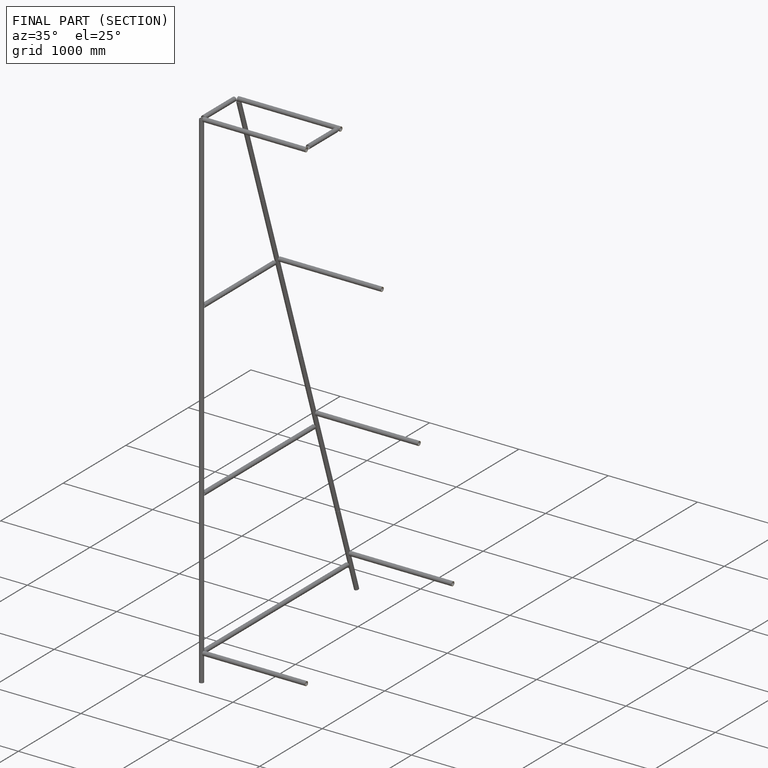
[diagram: finished part — half-section view (interior)]
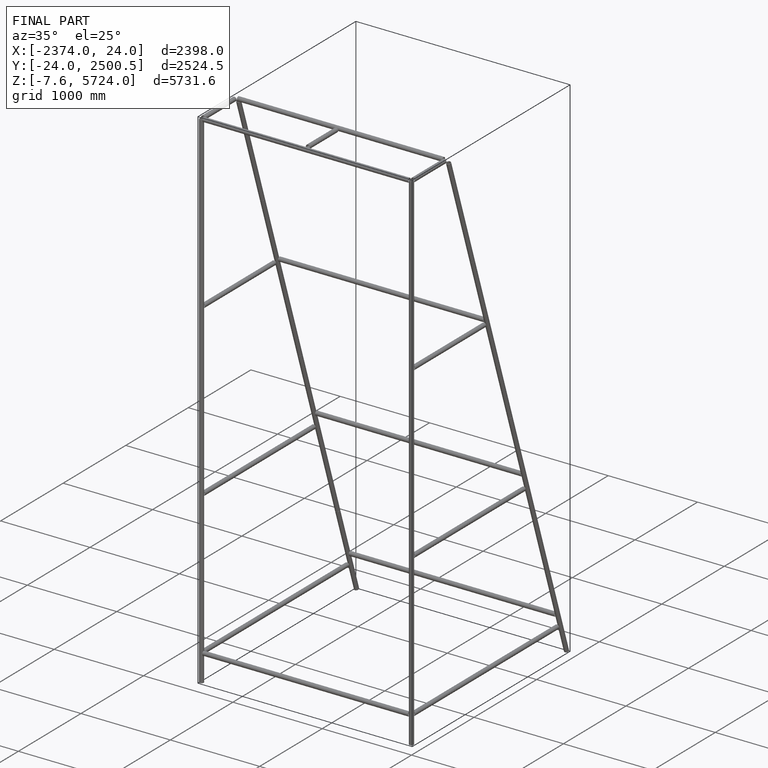
[diagram: finished part — iso view with bounding-box wireframe]
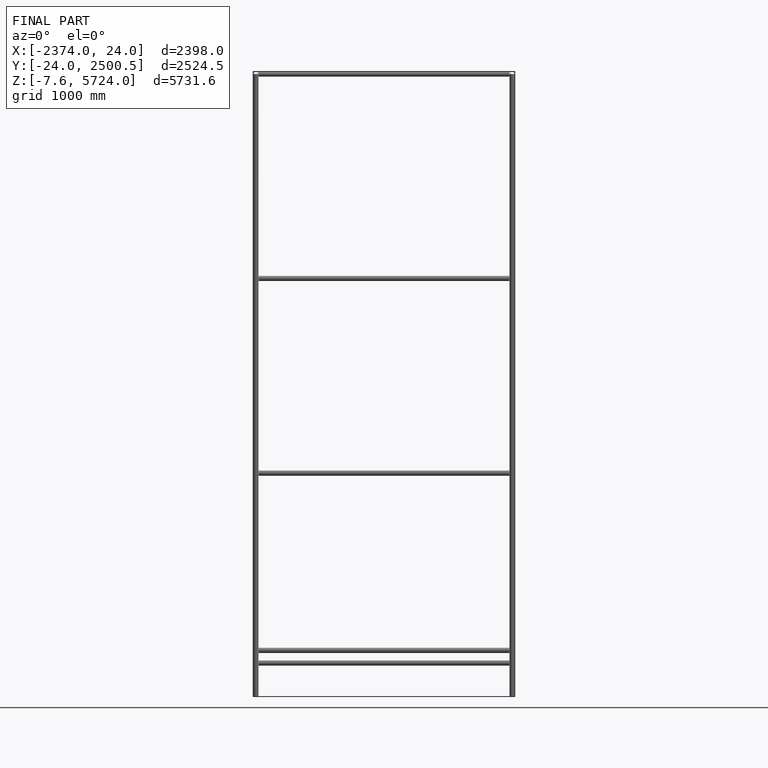
[diagram: finished part — front view with bounding-box wireframe]
